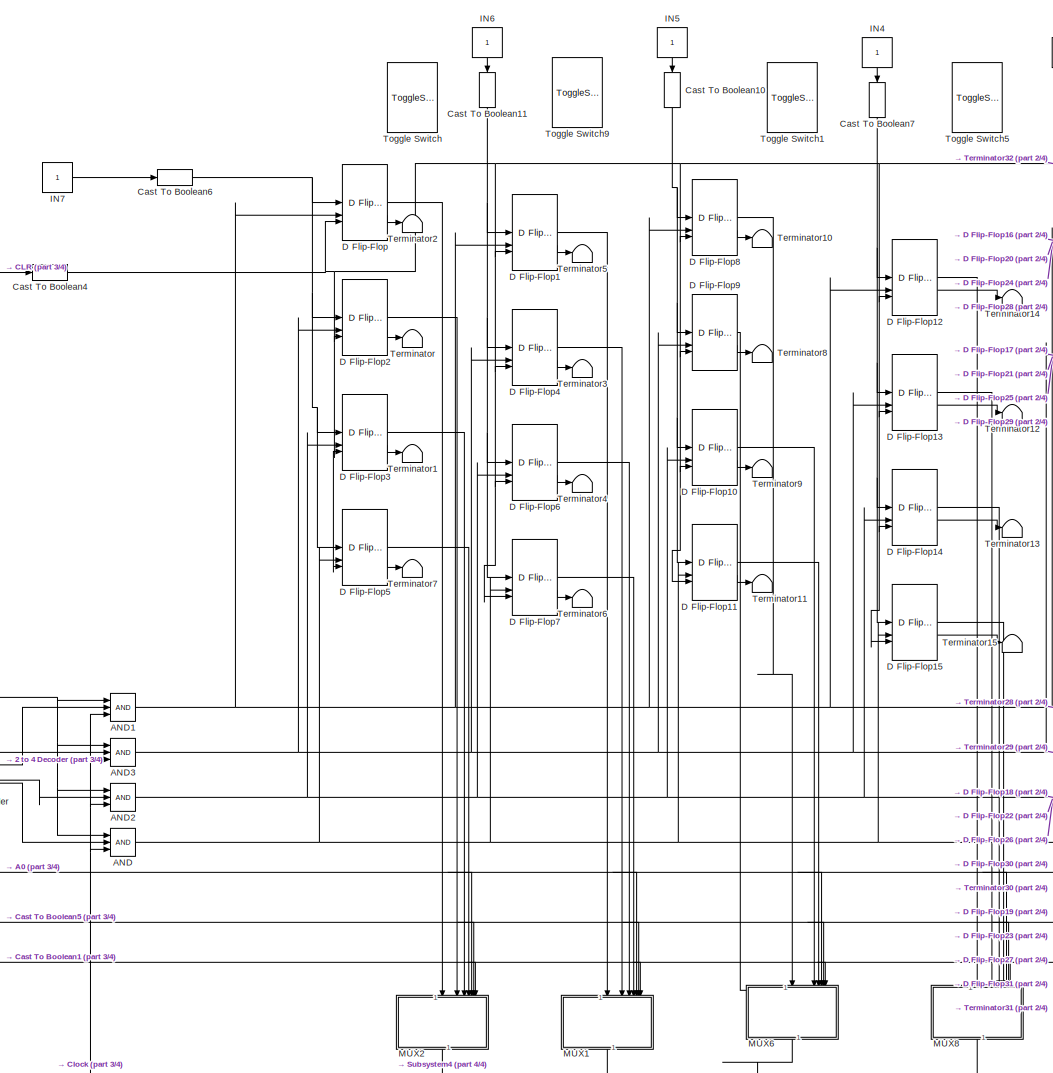
[diagram: root canvas - part 1/4, central region]
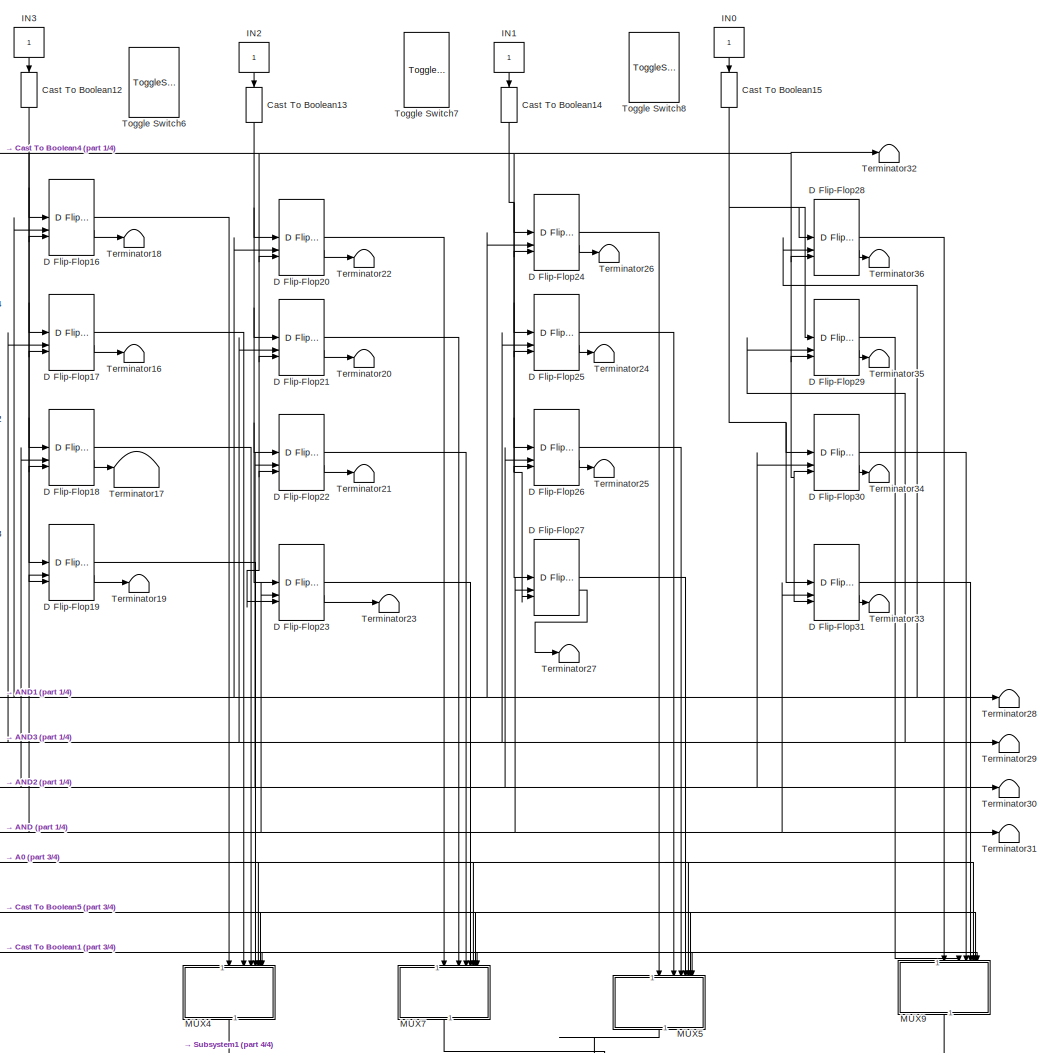
[diagram: root canvas - part 2/4, middle right region]
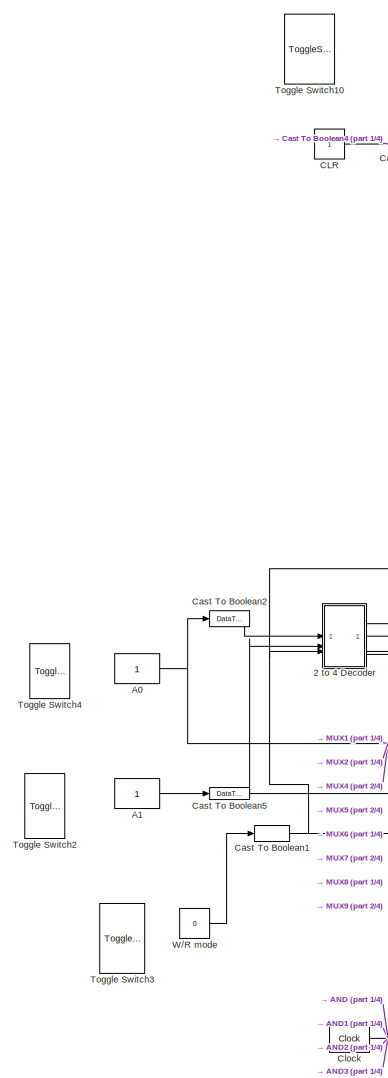
[diagram: root canvas - part 3/4, middle left region]
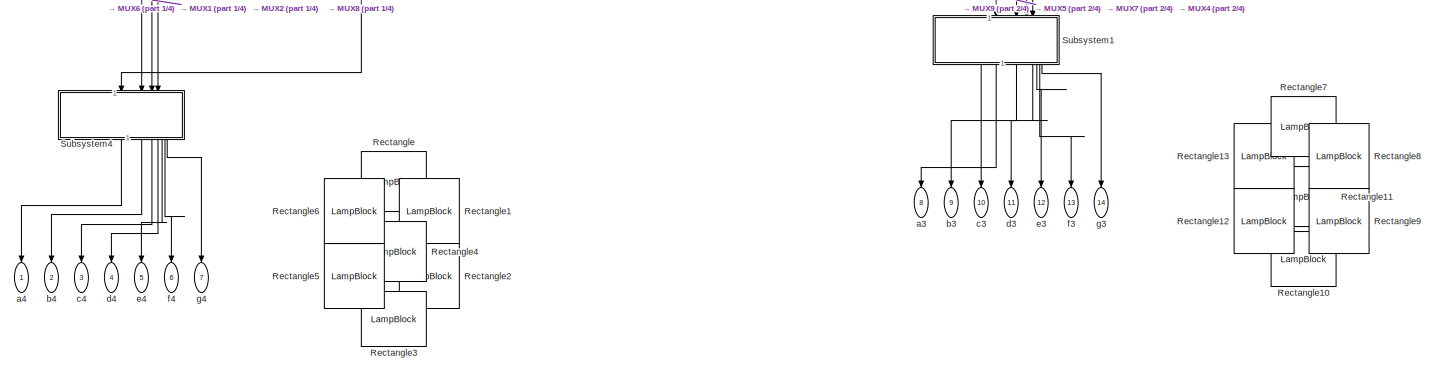
[diagram: root canvas - part 4/4, bottom right region]
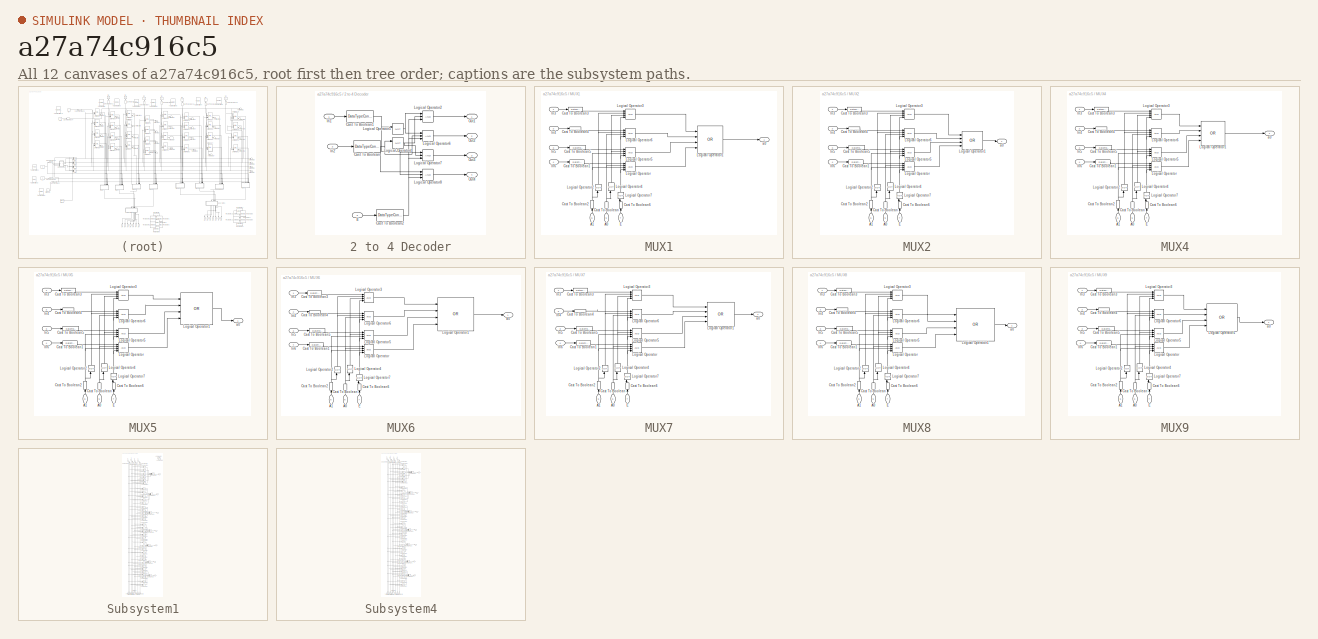
[diagram: thumbnail index - all 12 canvases of the model, root first then tree order]
MODEL slx_a27a74c916c5
KIND model
CONFIG AbsTol = auto
CONFIG EnableMultiTasking = off
CONFIG FixedStep = auto
CONFIG MaxStep = auto
CONFIG MinStep = auto
CONFIG RelTol = 1e-3
CONFIG SampleTimeConstraint = Unconstrained
CONFIG SolverName = VariableStepAuto
CONFIG StartTime = 0.0
CONFIG StopTime = inf
BLOCK [SubSystem] 2 to 4 Decoder
  TreatAsAtomicUnit = on
BLOCK [DataTypeConversion] 2 to 4 Decoder/Cast To Boolean
  OutDataTypeStr = boolean
  RndMeth = Floor
  SaturateOnIntegerOverflow = off
BLOCK [DataTypeConversion] 2 to 4 Decoder/Cast To Boolean1
  OutDataTypeStr = boolean
  RndMeth = Floor
  SaturateOnIntegerOverflow = off
BLOCK [DataTypeConversion] 2 to 4 Decoder/Cast To Boolean2
  OutDataTypeStr = boolean
  RndMeth = Floor
  SaturateOnIntegerOverflow = off
BLOCK [Inport] 2 to 4 Decoder/E
  Port = 3
BLOCK [Inport] 2 to 4 Decoder/In1
BLOCK [Inport] 2 to 4 Decoder/In2
  Port = 2
BLOCK [Logic] 2 to 4 Decoder/Logical Operator2
  AllPortsSameDT = off
  Inputs = 3
  OutDataTypeStr = boolean
BLOCK [Logic] 2 to 4 Decoder/Logical Operator4
  AllPortsSameDT = off
  Operator = NOT
  OutDataTypeStr = boolean
BLOCK [Logic] 2 to 4 Decoder/Logical Operator5
  AllPortsSameDT = off
  Operator = NOT
  OutDataTypeStr = boolean
BLOCK [Logic] 2 to 4 Decoder/Logical Operator6
  AllPortsSameDT = off
  Inputs = 3
  OutDataTypeStr = boolean
BLOCK [Logic] 2 to 4 Decoder/Logical Operator7
  AllPortsSameDT = off
  Inputs = 3
  OutDataTypeStr = boolean
BLOCK [Logic] 2 to 4 Decoder/Logical Operator8
  AllPortsSameDT = off
  Inputs = 3
  OutDataTypeStr = boolean
BLOCK [Outport] 2 to 4 Decoder/Out1
BLOCK [Outport] 2 to 4 Decoder/Out2
  Port = 2
BLOCK [Outport] 2 to 4 Decoder/Out3
  Port = 3
BLOCK [Outport] 2 to 4 Decoder/Out4
  Port = 4
BLOCK [Constant] A0
BLOCK [Constant] A1
BLOCK [Logic] AND
  AllPortsSameDT = off
  IconShape = distinctive
  Inputs = 3
  OutDataTypeStr = boolean
BLOCK [Logic] AND1
  AllPortsSameDT = off
  IconShape = distinctive
  Inputs = 3
  OutDataTypeStr = boolean
BLOCK [Logic] AND2
  AllPortsSameDT = off
  IconShape = distinctive
  Inputs = 3
  OutDataTypeStr = boolean
BLOCK [Logic] AND3
  AllPortsSameDT = off
  IconShape = distinctive
  Inputs = 3
  OutDataTypeStr = boolean
BLOCK [Constant] CLR
BLOCK [DataTypeConversion] Cast To Boolean1
  OutDataTypeStr = boolean
  RndMeth = Floor
  SaturateOnIntegerOverflow = off
BLOCK [DataTypeConversion] Cast To Boolean10
  NameLocation = left
  OutDataTypeStr = boolean
  RndMeth = Floor
  SaturateOnIntegerOverflow = off
BLOCK [DataTypeConversion] Cast To Boolean11
  NameLocation = left
  OutDataTypeStr = boolean
  RndMeth = Floor
  SaturateOnIntegerOverflow = off
BLOCK [DataTypeConversion] Cast To Boolean12
  NameLocation = left
  OutDataTypeStr = boolean
  RndMeth = Floor
  SaturateOnIntegerOverflow = off
BLOCK [DataTypeConversion] Cast To Boolean13
  NameLocation = left
  OutDataTypeStr = boolean
  RndMeth = Floor
  SaturateOnIntegerOverflow = off
BLOCK [DataTypeConversion] Cast To Boolean14
  NameLocation = left
  OutDataTypeStr = boolean
  RndMeth = Floor
  SaturateOnIntegerOverflow = off
BLOCK [DataTypeConversion] Cast To Boolean15
  NameLocation = left
  OutDataTypeStr = boolean
  RndMeth = Floor
  SaturateOnIntegerOverflow = off
BLOCK [DataTypeConversion] Cast To Boolean2
  OutDataTypeStr = boolean
  RndMeth = Floor
  SaturateOnIntegerOverflow = off
BLOCK [DataTypeConversion] Cast To Boolean4
  OutDataTypeStr = boolean
  RndMeth = Floor
  SaturateOnIntegerOverflow = off
BLOCK [DataTypeConversion] Cast To Boolean5
  OutDataTypeStr = boolean
  RndMeth = Floor
  SaturateOnIntegerOverflow = off
BLOCK [DataTypeConversion] Cast To Boolean6
  OutDataTypeStr = boolean
  RndMeth = Floor
  SaturateOnIntegerOverflow = off
BLOCK [DataTypeConversion] Cast To Boolean7
  NameLocation = left
  OutDataTypeStr = boolean
  RndMeth = Floor
  SaturateOnIntegerOverflow = off
BLOCK [Reference] Clock  REF=simulink_extras/Flip Flops/Clock
  SourceBlock = simulink_extras/Flip Flops/Clock
  SourceType = Digital clock
BLOCK [Reference] D Flip-Flop  REF=simulink_extras/Flip Flops/D Flip-Flop
  SourceBlock = simulink_extras/Flip Flops/D Flip-Flop
  SourceType = DFlipFlop
BLOCK [Reference] D Flip-Flop1  REF=simulink_extras/Flip Flops/D Flip-Flop
  SourceBlock = simulink_extras/Flip Flops/D Flip-Flop
  SourceType = DFlipFlop
BLOCK [Reference] D Flip-Flop10  REF=simulink_extras/Flip Flops/D Flip-Flop
  SourceBlock = simulink_extras/Flip Flops/D Flip-Flop
  SourceType = DFlipFlop
BLOCK [Reference] D Flip-Flop11  REF=simulink_extras/Flip Flops/D Flip-Flop
  SourceBlock = simulink_extras/Flip Flops/D Flip-Flop
  SourceType = DFlipFlop
BLOCK [Reference] D Flip-Flop12  REF=simulink_extras/Flip Flops/D Flip-Flop
  SourceBlock = simulink_extras/Flip Flops/D Flip-Flop
  SourceType = DFlipFlop
BLOCK [Reference] D Flip-Flop13  REF=simulink_extras/Flip Flops/D Flip-Flop
  SourceBlock = simulink_extras/Flip Flops/D Flip-Flop
  SourceType = DFlipFlop
BLOCK [Reference] D Flip-Flop14  REF=simulink_extras/Flip Flops/D Flip-Flop
  SourceBlock = simulink_extras/Flip Flops/D Flip-Flop
  SourceType = DFlipFlop
BLOCK [Reference] D Flip-Flop15  REF=simulink_extras/Flip Flops/D Flip-Flop
  SourceBlock = simulink_extras/Flip Flops/D Flip-Flop
  SourceType = DFlipFlop
BLOCK [Reference] D Flip-Flop16  REF=simulink_extras/Flip Flops/D Flip-Flop
  SourceBlock = simulink_extras/Flip Flops/D Flip-Flop
  SourceType = DFlipFlop
BLOCK [Reference] D Flip-Flop17  REF=simulink_extras/Flip Flops/D Flip-Flop
  SourceBlock = simulink_extras/Flip Flops/D Flip-Flop
  SourceType = DFlipFlop
BLOCK [Reference] D Flip-Flop18  REF=simulink_extras/Flip Flops/D Flip-Flop
  SourceBlock = simulink_extras/Flip Flops/D Flip-Flop
  SourceType = DFlipFlop
BLOCK [Reference] D Flip-Flop19  REF=simulink_extras/Flip Flops/D Flip-Flop
  SourceBlock = simulink_extras/Flip Flops/D Flip-Flop
  SourceType = DFlipFlop
BLOCK [Reference] D Flip-Flop2  REF=simulink_extras/Flip Flops/D Flip-Flop
  SourceBlock = simulink_extras/Flip Flops/D Flip-Flop
  SourceType = DFlipFlop
BLOCK [Reference] D Flip-Flop20  REF=simulink_extras/Flip Flops/D Flip-Flop
  SourceBlock = simulink_extras/Flip Flops/D Flip-Flop
  SourceType = DFlipFlop
BLOCK [Reference] D Flip-Flop21  REF=simulink_extras/Flip Flops/D Flip-Flop
  SourceBlock = simulink_extras/Flip Flops/D Flip-Flop
  SourceType = DFlipFlop
BLOCK [Reference] D Flip-Flop22  REF=simulink_extras/Flip Flops/D Flip-Flop
  SourceBlock = simulink_extras/Flip Flops/D Flip-Flop
  SourceType = DFlipFlop
BLOCK [Reference] D Flip-Flop23  REF=simulink_extras/Flip Flops/D Flip-Flop
  SourceBlock = simulink_extras/Flip Flops/D Flip-Flop
  SourceType = DFlipFlop
BLOCK [Reference] D Flip-Flop24  REF=simulink_extras/Flip Flops/D Flip-Flop
  SourceBlock = simulink_extras/Flip Flops/D Flip-Flop
  SourceType = DFlipFlop
BLOCK [Reference] D Flip-Flop25  REF=simulink_extras/Flip Flops/D Flip-Flop
  SourceBlock = simulink_extras/Flip Flops/D Flip-Flop
  SourceType = DFlipFlop
BLOCK [Reference] D Flip-Flop26  REF=simulink_extras/Flip Flops/D Flip-Flop
  SourceBlock = simulink_extras/Flip Flops/D Flip-Flop
  SourceType = DFlipFlop
BLOCK [Reference] D Flip-Flop27  REF=simulink_extras/Flip Flops/D Flip-Flop
  SourceBlock = simulink_extras/Flip Flops/D Flip-Flop
  SourceType = DFlipFlop
BLOCK [Reference] D Flip-Flop28  REF=simulink_extras/Flip Flops/D Flip-Flop
  SourceBlock = simulink_extras/Flip Flops/D Flip-Flop
  SourceType = DFlipFlop
BLOCK [Reference] D Flip-Flop29  REF=simulink_extras/Flip Flops/D Flip-Flop
  SourceBlock = simulink_extras/Flip Flops/D Flip-Flop
  SourceType = DFlipFlop
BLOCK [Reference] D Flip-Flop3  REF=simulink_extras/Flip Flops/D Flip-Flop
  SourceBlock = simulink_extras/Flip Flops/D Flip-Flop
  SourceType = DFlipFlop
BLOCK [Reference] D Flip-Flop30  REF=simulink_extras/Flip Flops/D Flip-Flop
  SourceBlock = simulink_extras/Flip Flops/D Flip-Flop
  SourceType = DFlipFlop
BLOCK [Reference] D Flip-Flop31  REF=simulink_extras/Flip Flops/D Flip-Flop
  SourceBlock = simulink_extras/Flip Flops/D Flip-Flop
  SourceType = DFlipFlop
BLOCK [Reference] D Flip-Flop4  REF=simulink_extras/Flip Flops/D Flip-Flop
  SourceBlock = simulink_extras/Flip Flops/D Flip-Flop
  SourceType = DFlipFlop
BLOCK [Reference] D Flip-Flop5  REF=simulink_extras/Flip Flops/D Flip-Flop
  SourceBlock = simulink_extras/Flip Flops/D Flip-Flop
  SourceType = DFlipFlop
BLOCK [Reference] D Flip-Flop6  REF=simulink_extras/Flip Flops/D Flip-Flop
  SourceBlock = simulink_extras/Flip Flops/D Flip-Flop
  SourceType = DFlipFlop
BLOCK [Reference] D Flip-Flop7  REF=simulink_extras/Flip Flops/D Flip-Flop
  SourceBlock = simulink_extras/Flip Flops/D Flip-Flop
  SourceType = DFlipFlop
BLOCK [Reference] D Flip-Flop8  REF=simulink_extras/Flip Flops/D Flip-Flop
  SourceBlock = simulink_extras/Flip Flops/D Flip-Flop
  SourceType = DFlipFlop
BLOCK [Reference] D Flip-Flop9  REF=simulink_extras/Flip Flops/D Flip-Flop
  SourceBlock = simulink_extras/Flip Flops/D Flip-Flop
  SourceType = DFlipFlop
BLOCK [Constant] IN0
  NameLocation = left
BLOCK [Constant] IN1
  NameLocation = left
BLOCK [Constant] IN2
  NameLocation = left
BLOCK [Constant] IN3
  NameLocation = left
BLOCK [Constant] IN4
  NameLocation = left
BLOCK [Constant] IN5
  NameLocation = left
BLOCK [Constant] IN6
  NameLocation = left
BLOCK [Constant] IN7
BLOCK [SubSystem] MUX1
  NameLocation = left
  TreatAsAtomicUnit = on
BLOCK [Inport] MUX1/A0
  NameLocation = right
  Port = 5
BLOCK [Inport] MUX1/A1
  NameLocation = right
  Port = 6
BLOCK [DataTypeConversion] MUX1/Cast To Boolean
  NameLocation = right
  OutDataTypeStr = boolean
  RndMeth = Floor
  SaturateOnIntegerOverflow = off
BLOCK [DataTypeConversion] MUX1/Cast To Boolean1
  OutDataTypeStr = boolean
  RndMeth = Floor
  SaturateOnIntegerOverflow = off
BLOCK [DataTypeConversion] MUX1/Cast To Boolean2
  NameLocation = right
  OutDataTypeStr = boolean
  RndMeth = Floor
  SaturateOnIntegerOverflow = off
BLOCK [DataTypeConversion] MUX1/Cast To Boolean3
  OutDataTypeStr = boolean
  RndMeth = Floor
  SaturateOnIntegerOverflow = off
BLOCK [DataTypeConversion] MUX1/Cast To Boolean4
  OutDataTypeStr = boolean
  RndMeth = Floor
  SaturateOnIntegerOverflow = off
BLOCK [DataTypeConversion] MUX1/Cast To Boolean5
  OutDataTypeStr = boolean
  RndMeth = Floor
  SaturateOnIntegerOverflow = off
BLOCK [DataTypeConversion] MUX1/Cast To Boolean6
  NameLocation = right
  OutDataTypeStr = boolean
  RndMeth = Floor
  SaturateOnIntegerOverflow = off
BLOCK [Inport] MUX1/E
  NameLocation = right
  Port = 7
BLOCK [Inport] MUX1/In3
BLOCK [Inport] MUX1/In4
  Port = 2
BLOCK [Inport] MUX1/In5
  Port = 3
BLOCK [Inport] MUX1/In6
  Port = 4
BLOCK [Logic] MUX1/Logical Operator
  AllPortsSameDT = off
  Inputs = 4
  OutDataTypeStr = boolean
BLOCK [Logic] MUX1/Logical Operator1
  AllPortsSameDT = off
  Inputs = 4
  Operator = OR
  OutDataTypeStr = boolean
BLOCK [Logic] MUX1/Logical Operator2
  AllPortsSameDT = off
  NameLocation = right
  Operator = NOT
  OutDataTypeStr = boolean
BLOCK [Logic] MUX1/Logical Operator3
  AllPortsSameDT = off
  Inputs = 4
  OutDataTypeStr = boolean
BLOCK [Logic] MUX1/Logical Operator4
  AllPortsSameDT = off
  NameLocation = right
  Operator = NOT
  OutDataTypeStr = boolean
BLOCK [Logic] MUX1/Logical Operator5
  AllPortsSameDT = off
  Inputs = 4
  OutDataTypeStr = boolean
BLOCK [Logic] MUX1/Logical Operator6
  AllPortsSameDT = off
  Inputs = 4
  OutDataTypeStr = boolean
BLOCK [Logic] MUX1/Logical Operator7
  AllPortsSameDT = off
  NameLocation = right
  Operator = NOT
  OutDataTypeStr = boolean
BLOCK [Outport] MUX1/a0
BLOCK [SubSystem] MUX2
  NameLocation = left
  TreatAsAtomicUnit = on
BLOCK [Inport] MUX2/A0
  NameLocation = right
  Port = 5
BLOCK [Inport] MUX2/A1
  NameLocation = right
  Port = 6
BLOCK [DataTypeConversion] MUX2/Cast To Boolean
  NameLocation = right
  OutDataTypeStr = boolean
  RndMeth = Floor
  SaturateOnIntegerOverflow = off
BLOCK [DataTypeConversion] MUX2/Cast To Boolean1
  OutDataTypeStr = boolean
  RndMeth = Floor
  SaturateOnIntegerOverflow = off
BLOCK [DataTypeConversion] MUX2/Cast To Boolean2
  NameLocation = right
  OutDataTypeStr = boolean
  RndMeth = Floor
  SaturateOnIntegerOverflow = off
BLOCK [DataTypeConversion] MUX2/Cast To Boolean3
  OutDataTypeStr = boolean
  RndMeth = Floor
  SaturateOnIntegerOverflow = off
BLOCK [DataTypeConversion] MUX2/Cast To Boolean4
  OutDataTypeStr = boolean
  RndMeth = Floor
  SaturateOnIntegerOverflow = off
BLOCK [DataTypeConversion] MUX2/Cast To Boolean5
  OutDataTypeStr = boolean
  RndMeth = Floor
  SaturateOnIntegerOverflow = off
BLOCK [DataTypeConversion] MUX2/Cast To Boolean6
  NameLocation = right
  OutDataTypeStr = boolean
  RndMeth = Floor
  SaturateOnIntegerOverflow = off
BLOCK [Inport] MUX2/E
  NameLocation = right
  Port = 7
BLOCK [Inport] MUX2/In3
BLOCK [Inport] MUX2/In4
  Port = 2
BLOCK [Inport] MUX2/In5
  Port = 3
BLOCK [Inport] MUX2/In6
  Port = 4
BLOCK [Logic] MUX2/Logical Operator
  AllPortsSameDT = off
  Inputs = 4
  OutDataTypeStr = boolean
BLOCK [Logic] MUX2/Logical Operator1
  AllPortsSameDT = off
  Inputs = 4
  Operator = OR
  OutDataTypeStr = boolean
BLOCK [Logic] MUX2/Logical Operator2
  AllPortsSameDT = off
  NameLocation = right
  Operator = NOT
  OutDataTypeStr = boolean
BLOCK [Logic] MUX2/Logical Operator3
  AllPortsSameDT = off
  Inputs = 4
  OutDataTypeStr = boolean
BLOCK [Logic] MUX2/Logical Operator4
  AllPortsSameDT = off
  NameLocation = right
  Operator = NOT
  OutDataTypeStr = boolean
BLOCK [Logic] MUX2/Logical Operator5
  AllPortsSameDT = off
  Inputs = 4
  OutDataTypeStr = boolean
BLOCK [Logic] MUX2/Logical Operator6
  AllPortsSameDT = off
  Inputs = 4
  OutDataTypeStr = boolean
BLOCK [Logic] MUX2/Logical Operator7
  AllPortsSameDT = off
  NameLocation = right
  Operator = NOT
  OutDataTypeStr = boolean
BLOCK [Outport] MUX2/a0
BLOCK [SubSystem] MUX4
  NameLocation = left
  TreatAsAtomicUnit = on
BLOCK [Inport] MUX4/A0
  NameLocation = right
  Port = 5
BLOCK [Inport] MUX4/A1
  NameLocation = right
  Port = 6
BLOCK [DataTypeConversion] MUX4/Cast To Boolean
  NameLocation = right
  OutDataTypeStr = boolean
  RndMeth = Floor
  SaturateOnIntegerOverflow = off
BLOCK [DataTypeConversion] MUX4/Cast To Boolean1
  OutDataTypeStr = boolean
  RndMeth = Floor
  SaturateOnIntegerOverflow = off
BLOCK [DataTypeConversion] MUX4/Cast To Boolean2
  NameLocation = right
  OutDataTypeStr = boolean
  RndMeth = Floor
  SaturateOnIntegerOverflow = off
BLOCK [DataTypeConversion] MUX4/Cast To Boolean3
  OutDataTypeStr = boolean
  RndMeth = Floor
  SaturateOnIntegerOverflow = off
BLOCK [DataTypeConversion] MUX4/Cast To Boolean4
  OutDataTypeStr = boolean
  RndMeth = Floor
  SaturateOnIntegerOverflow = off
BLOCK [DataTypeConversion] MUX4/Cast To Boolean5
  OutDataTypeStr = boolean
  RndMeth = Floor
  SaturateOnIntegerOverflow = off
BLOCK [DataTypeConversion] MUX4/Cast To Boolean6
  NameLocation = right
  OutDataTypeStr = boolean
  RndMeth = Floor
  SaturateOnIntegerOverflow = off
BLOCK [Inport] MUX4/E
  NameLocation = right
  Port = 7
BLOCK [Inport] MUX4/In3
BLOCK [Inport] MUX4/In4
  Port = 2
BLOCK [Inport] MUX4/In5
  Port = 3
BLOCK [Inport] MUX4/In6
  Port = 4
BLOCK [Logic] MUX4/Logical Operator
  AllPortsSameDT = off
  Inputs = 4
  OutDataTypeStr = boolean
BLOCK [Logic] MUX4/Logical Operator1
  AllPortsSameDT = off
  Inputs = 4
  Operator = OR
  OutDataTypeStr = boolean
BLOCK [Logic] MUX4/Logical Operator2
  AllPortsSameDT = off
  NameLocation = right
  Operator = NOT
  OutDataTypeStr = boolean
BLOCK [Logic] MUX4/Logical Operator3
  AllPortsSameDT = off
  Inputs = 4
  OutDataTypeStr = boolean
BLOCK [Logic] MUX4/Logical Operator4
  AllPortsSameDT = off
  NameLocation = right
  Operator = NOT
  OutDataTypeStr = boolean
BLOCK [Logic] MUX4/Logical Operator5
  AllPortsSameDT = off
  Inputs = 4
  OutDataTypeStr = boolean
BLOCK [Logic] MUX4/Logical Operator6
  AllPortsSameDT = off
  Inputs = 4
  OutDataTypeStr = boolean
BLOCK [Logic] MUX4/Logical Operator7
  AllPortsSameDT = off
  NameLocation = right
  Operator = NOT
  OutDataTypeStr = boolean
BLOCK [Outport] MUX4/a0
BLOCK [SubSystem] MUX5
  NameLocation = left
  TreatAsAtomicUnit = on
BLOCK [Inport] MUX5/A0
  NameLocation = right
  Port = 5
BLOCK [Inport] MUX5/A1
  NameLocation = right
  Port = 6
BLOCK [DataTypeConversion] MUX5/Cast To Boolean
  NameLocation = right
  OutDataTypeStr = boolean
  RndMeth = Floor
  SaturateOnIntegerOverflow = off
BLOCK [DataTypeConversion] MUX5/Cast To Boolean1
  OutDataTypeStr = boolean
  RndMeth = Floor
  SaturateOnIntegerOverflow = off
BLOCK [DataTypeConversion] MUX5/Cast To Boolean2
  NameLocation = right
  OutDataTypeStr = boolean
  RndMeth = Floor
  SaturateOnIntegerOverflow = off
BLOCK [DataTypeConversion] MUX5/Cast To Boolean3
  OutDataTypeStr = boolean
  RndMeth = Floor
  SaturateOnIntegerOverflow = off
BLOCK [DataTypeConversion] MUX5/Cast To Boolean4
  OutDataTypeStr = boolean
  RndMeth = Floor
  SaturateOnIntegerOverflow = off
BLOCK [DataTypeConversion] MUX5/Cast To Boolean5
  OutDataTypeStr = boolean
  RndMeth = Floor
  SaturateOnIntegerOverflow = off
BLOCK [DataTypeConversion] MUX5/Cast To Boolean6
  NameLocation = right
  OutDataTypeStr = boolean
  RndMeth = Floor
  SaturateOnIntegerOverflow = off
BLOCK [Inport] MUX5/E
  NameLocation = right
  Port = 7
BLOCK [Inport] MUX5/In3
BLOCK [Inport] MUX5/In4
  Port = 2
BLOCK [Inport] MUX5/In5
  Port = 3
BLOCK [Inport] MUX5/In6
  Port = 4
BLOCK [Logic] MUX5/Logical Operator
  AllPortsSameDT = off
  Inputs = 4
  OutDataTypeStr = boolean
BLOCK [Logic] MUX5/Logical Operator1
  AllPortsSameDT = off
  Inputs = 4
  Operator = OR
  OutDataTypeStr = boolean
BLOCK [Logic] MUX5/Logical Operator2
  AllPortsSameDT = off
  NameLocation = right
  Operator = NOT
  OutDataTypeStr = boolean
BLOCK [Logic] MUX5/Logical Operator3
  AllPortsSameDT = off
  Inputs = 4
  OutDataTypeStr = boolean
BLOCK [Logic] MUX5/Logical Operator4
  AllPortsSameDT = off
  NameLocation = right
  Operator = NOT
  OutDataTypeStr = boolean
BLOCK [Logic] MUX5/Logical Operator5
  AllPortsSameDT = off
  Inputs = 4
  OutDataTypeStr = boolean
BLOCK [Logic] MUX5/Logical Operator6
  AllPortsSameDT = off
  Inputs = 4
  OutDataTypeStr = boolean
BLOCK [Logic] MUX5/Logical Operator7
  AllPortsSameDT = off
  NameLocation = right
  Operator = NOT
  OutDataTypeStr = boolean
BLOCK [Outport] MUX5/a0
BLOCK [SubSystem] MUX6
  NameLocation = left
  TreatAsAtomicUnit = on
BLOCK [Inport] MUX6/A0
  NameLocation = right
  Port = 5
BLOCK [Inport] MUX6/A1
  NameLocation = right
  Port = 6
BLOCK [DataTypeConversion] MUX6/Cast To Boolean
  NameLocation = right
  OutDataTypeStr = boolean
  RndMeth = Floor
  SaturateOnIntegerOverflow = off
BLOCK [DataTypeConversion] MUX6/Cast To Boolean1
  OutDataTypeStr = boolean
  RndMeth = Floor
  SaturateOnIntegerOverflow = off
BLOCK [DataTypeConversion] MUX6/Cast To Boolean2
  NameLocation = right
  OutDataTypeStr = boolean
  RndMeth = Floor
  SaturateOnIntegerOverflow = off
BLOCK [DataTypeConversion] MUX6/Cast To Boolean3
  OutDataTypeStr = boolean
  RndMeth = Floor
  SaturateOnIntegerOverflow = off
BLOCK [DataTypeConversion] MUX6/Cast To Boolean4
  OutDataTypeStr = boolean
  RndMeth = Floor
  SaturateOnIntegerOverflow = off
BLOCK [DataTypeConversion] MUX6/Cast To Boolean5
  OutDataTypeStr = boolean
  RndMeth = Floor
  SaturateOnIntegerOverflow = off
BLOCK [DataTypeConversion] MUX6/Cast To Boolean6
  NameLocation = right
  OutDataTypeStr = boolean
  RndMeth = Floor
  SaturateOnIntegerOverflow = off
BLOCK [Inport] MUX6/E
  NameLocation = right
  Port = 7
BLOCK [Inport] MUX6/In3
BLOCK [Inport] MUX6/In4
  Port = 2
BLOCK [Inport] MUX6/In5
  Port = 3
BLOCK [Inport] MUX6/In6
  Port = 4
BLOCK [Logic] MUX6/Logical Operator
  AllPortsSameDT = off
  Inputs = 4
  OutDataTypeStr = boolean
BLOCK [Logic] MUX6/Logical Operator1
  AllPortsSameDT = off
  Inputs = 4
  Operator = OR
  OutDataTypeStr = boolean
BLOCK [Logic] MUX6/Logical Operator2
  AllPortsSameDT = off
  NameLocation = right
  Operator = NOT
  OutDataTypeStr = boolean
BLOCK [Logic] MUX6/Logical Operator3
  AllPortsSameDT = off
  Inputs = 4
  OutDataTypeStr = boolean
BLOCK [Logic] MUX6/Logical Operator4
  AllPortsSameDT = off
  NameLocation = right
  Operator = NOT
  OutDataTypeStr = boolean
BLOCK [Logic] MUX6/Logical Operator5
  AllPortsSameDT = off
  Inputs = 4
  OutDataTypeStr = boolean
BLOCK [Logic] MUX6/Logical Operator6
  AllPortsSameDT = off
  Inputs = 4
  OutDataTypeStr = boolean
BLOCK [Logic] MUX6/Logical Operator7
  AllPortsSameDT = off
  NameLocation = right
  Operator = NOT
  OutDataTypeStr = boolean
BLOCK [Outport] MUX6/a0
BLOCK [SubSystem] MUX7
  NameLocation = left
  TreatAsAtomicUnit = on
BLOCK [Inport] MUX7/A0
  NameLocation = right
  Port = 5
BLOCK [Inport] MUX7/A1
  NameLocation = right
  Port = 6
BLOCK [DataTypeConversion] MUX7/Cast To Boolean
  NameLocation = right
  OutDataTypeStr = boolean
  RndMeth = Floor
  SaturateOnIntegerOverflow = off
BLOCK [DataTypeConversion] MUX7/Cast To Boolean1
  OutDataTypeStr = boolean
  RndMeth = Floor
  SaturateOnIntegerOverflow = off
BLOCK [DataTypeConversion] MUX7/Cast To Boolean2
  NameLocation = right
  OutDataTypeStr = boolean
  RndMeth = Floor
  SaturateOnIntegerOverflow = off
BLOCK [DataTypeConversion] MUX7/Cast To Boolean3
  OutDataTypeStr = boolean
  RndMeth = Floor
  SaturateOnIntegerOverflow = off
BLOCK [DataTypeConversion] MUX7/Cast To Boolean4
  OutDataTypeStr = boolean
  RndMeth = Floor
  SaturateOnIntegerOverflow = off
BLOCK [DataTypeConversion] MUX7/Cast To Boolean5
  OutDataTypeStr = boolean
  RndMeth = Floor
  SaturateOnIntegerOverflow = off
BLOCK [DataTypeConversion] MUX7/Cast To Boolean6
  NameLocation = right
  OutDataTypeStr = boolean
  RndMeth = Floor
  SaturateOnIntegerOverflow = off
BLOCK [Inport] MUX7/E
  NameLocation = right
  Port = 7
BLOCK [Inport] MUX7/In3
BLOCK [Inport] MUX7/In4
  Port = 2
BLOCK [Inport] MUX7/In5
  Port = 3
BLOCK [Inport] MUX7/In6
  Port = 4
BLOCK [Logic] MUX7/Logical Operator
  AllPortsSameDT = off
  Inputs = 4
  OutDataTypeStr = boolean
BLOCK [Logic] MUX7/Logical Operator1
  AllPortsSameDT = off
  Inputs = 4
  Operator = OR
  OutDataTypeStr = boolean
BLOCK [Logic] MUX7/Logical Operator2
  AllPortsSameDT = off
  NameLocation = right
  Operator = NOT
  OutDataTypeStr = boolean
BLOCK [Logic] MUX7/Logical Operator3
  AllPortsSameDT = off
  Inputs = 4
  OutDataTypeStr = boolean
BLOCK [Logic] MUX7/Logical Operator4
  AllPortsSameDT = off
  NameLocation = right
  Operator = NOT
  OutDataTypeStr = boolean
BLOCK [Logic] MUX7/Logical Operator5
  AllPortsSameDT = off
  Inputs = 4
  OutDataTypeStr = boolean
BLOCK [Logic] MUX7/Logical Operator6
  AllPortsSameDT = off
  Inputs = 4
  OutDataTypeStr = boolean
BLOCK [Logic] MUX7/Logical Operator7
  AllPortsSameDT = off
  NameLocation = right
  Operator = NOT
  OutDataTypeStr = boolean
BLOCK [Outport] MUX7/a0
BLOCK [SubSystem] MUX8
  NameLocation = left
  TreatAsAtomicUnit = on
BLOCK [Inport] MUX8/A0
  NameLocation = right
  Port = 5
BLOCK [Inport] MUX8/A1
  NameLocation = right
  Port = 6
BLOCK [DataTypeConversion] MUX8/Cast To Boolean
  NameLocation = right
  OutDataTypeStr = boolean
  RndMeth = Floor
  SaturateOnIntegerOverflow = off
BLOCK [DataTypeConversion] MUX8/Cast To Boolean1
  OutDataTypeStr = boolean
  RndMeth = Floor
  SaturateOnIntegerOverflow = off
BLOCK [DataTypeConversion] MUX8/Cast To Boolean2
  NameLocation = right
  OutDataTypeStr = boolean
  RndMeth = Floor
  SaturateOnIntegerOverflow = off
BLOCK [DataTypeConversion] MUX8/Cast To Boolean3
  OutDataTypeStr = boolean
  RndMeth = Floor
  SaturateOnIntegerOverflow = off
BLOCK [DataTypeConversion] MUX8/Cast To Boolean4
  OutDataTypeStr = boolean
  RndMeth = Floor
  SaturateOnIntegerOverflow = off
BLOCK [DataTypeConversion] MUX8/Cast To Boolean5
  OutDataTypeStr = boolean
  RndMeth = Floor
  SaturateOnIntegerOverflow = off
BLOCK [DataTypeConversion] MUX8/Cast To Boolean6
  NameLocation = right
  OutDataTypeStr = boolean
  RndMeth = Floor
  SaturateOnIntegerOverflow = off
BLOCK [Inport] MUX8/E
  NameLocation = right
  Port = 7
BLOCK [Inport] MUX8/In3
BLOCK [Inport] MUX8/In4
  Port = 2
BLOCK [Inport] MUX8/In5
  Port = 3
BLOCK [Inport] MUX8/In6
  Port = 4
BLOCK [Logic] MUX8/Logical Operator
  AllPortsSameDT = off
  Inputs = 4
  OutDataTypeStr = boolean
BLOCK [Logic] MUX8/Logical Operator1
  AllPortsSameDT = off
  Inputs = 4
  Operator = OR
  OutDataTypeStr = boolean
BLOCK [Logic] MUX8/Logical Operator2
  AllPortsSameDT = off
  NameLocation = right
  Operator = NOT
  OutDataTypeStr = boolean
BLOCK [Logic] MUX8/Logical Operator3
  AllPortsSameDT = off
  Inputs = 4
  OutDataTypeStr = boolean
BLOCK [Logic] MUX8/Logical Operator4
  AllPortsSameDT = off
  NameLocation = right
  Operator = NOT
  OutDataTypeStr = boolean
BLOCK [Logic] MUX8/Logical Operator5
  AllPortsSameDT = off
  Inputs = 4
  OutDataTypeStr = boolean
BLOCK [Logic] MUX8/Logical Operator6
  AllPortsSameDT = off
  Inputs = 4
  OutDataTypeStr = boolean
BLOCK [Logic] MUX8/Logical Operator7
  AllPortsSameDT = off
  NameLocation = right
  Operator = NOT
  OutDataTypeStr = boolean
BLOCK [Outport] MUX8/a0
BLOCK [SubSystem] MUX9
  NameLocation = left
  TreatAsAtomicUnit = on
BLOCK [Inport] MUX9/A0
  NameLocation = right
  Port = 5
BLOCK [Inport] MUX9/A1
  NameLocation = right
  Port = 6
BLOCK [DataTypeConversion] MUX9/Cast To Boolean
  NameLocation = right
  OutDataTypeStr = boolean
  RndMeth = Floor
  SaturateOnIntegerOverflow = off
BLOCK [DataTypeConversion] MUX9/Cast To Boolean1
  OutDataTypeStr = boolean
  RndMeth = Floor
  SaturateOnIntegerOverflow = off
BLOCK [DataTypeConversion] MUX9/Cast To Boolean2
  NameLocation = right
  OutDataTypeStr = boolean
  RndMeth = Floor
  SaturateOnIntegerOverflow = off
BLOCK [DataTypeConversion] MUX9/Cast To Boolean3
  OutDataTypeStr = boolean
  RndMeth = Floor
  SaturateOnIntegerOverflow = off
BLOCK [DataTypeConversion] MUX9/Cast To Boolean4
  OutDataTypeStr = boolean
  RndMeth = Floor
  SaturateOnIntegerOverflow = off
BLOCK [DataTypeConversion] MUX9/Cast To Boolean5
  OutDataTypeStr = boolean
  RndMeth = Floor
  SaturateOnIntegerOverflow = off
BLOCK [DataTypeConversion] MUX9/Cast To Boolean6
  NameLocation = right
  OutDataTypeStr = boolean
  RndMeth = Floor
  SaturateOnIntegerOverflow = off
BLOCK [Inport] MUX9/E
  NameLocation = right
  Port = 7
BLOCK [Inport] MUX9/In3
BLOCK [Inport] MUX9/In4
  Port = 2
BLOCK [Inport] MUX9/In5
  Port = 3
BLOCK [Inport] MUX9/In6
  Port = 4
BLOCK [Logic] MUX9/Logical Operator
  AllPortsSameDT = off
  Inputs = 4
  OutDataTypeStr = boolean
BLOCK [Logic] MUX9/Logical Operator1
  AllPortsSameDT = off
  Inputs = 4
  Operator = OR
  OutDataTypeStr = boolean
BLOCK [Logic] MUX9/Logical Operator2
  AllPortsSameDT = off
  NameLocation = right
  Operator = NOT
  OutDataTypeStr = boolean
BLOCK [Logic] MUX9/Logical Operator3
  AllPortsSameDT = off
  Inputs = 4
  OutDataTypeStr = boolean
BLOCK [Logic] MUX9/Logical Operator4
  AllPortsSameDT = off
  NameLocation = right
  Operator = NOT
  OutDataTypeStr = boolean
BLOCK [Logic] MUX9/Logical Operator5
  AllPortsSameDT = off
  Inputs = 4
  OutDataTypeStr = boolean
BLOCK [Logic] MUX9/Logical Operator6
  AllPortsSameDT = off
  Inputs = 4
  OutDataTypeStr = boolean
BLOCK [Logic] MUX9/Logical Operator7
  AllPortsSameDT = off
  NameLocation = right
  Operator = NOT
  OutDataTypeStr = boolean
BLOCK [Outport] MUX9/a0
BLOCK [LampBlock] Rectangle
  Icon = Rectangle
  LabelPosition = Bottom
BLOCK [LampBlock] Rectangle1
  Icon = Rectangle
  LabelPosition = Bottom
  NameLocation = right
BLOCK [LampBlock] Rectangle10
  Icon = Rectangle
  LabelPosition = Bottom
BLOCK [LampBlock] Rectangle11
  Icon = Rectangle
  LabelPosition = Bottom
BLOCK [LampBlock] Rectangle12
  Icon = Rectangle
  LabelPosition = Bottom
  NameLocation = right
BLOCK [LampBlock] Rectangle13
  Icon = Rectangle
  LabelPosition = Bottom
  NameLocation = right
BLOCK [LampBlock] Rectangle2
  Icon = Rectangle
  LabelPosition = Bottom
  NameLocation = right
BLOCK [LampBlock] Rectangle3
  Icon = Rectangle
  LabelPosition = Bottom
BLOCK [LampBlock] Rectangle4
  Icon = Rectangle
  LabelPosition = Bottom
BLOCK [LampBlock] Rectangle5
  Icon = Rectangle
  LabelPosition = Bottom
  NameLocation = right
BLOCK [LampBlock] Rectangle6
  Icon = Rectangle
  LabelPosition = Bottom
  NameLocation = right
BLOCK [LampBlock] Rectangle7
  Icon = Rectangle
  LabelPosition = Bottom
BLOCK [LampBlock] Rectangle8
  Icon = Rectangle
  LabelPosition = Bottom
  NameLocation = right
BLOCK [LampBlock] Rectangle9
  Icon = Rectangle
  LabelPosition = Bottom
  NameLocation = right
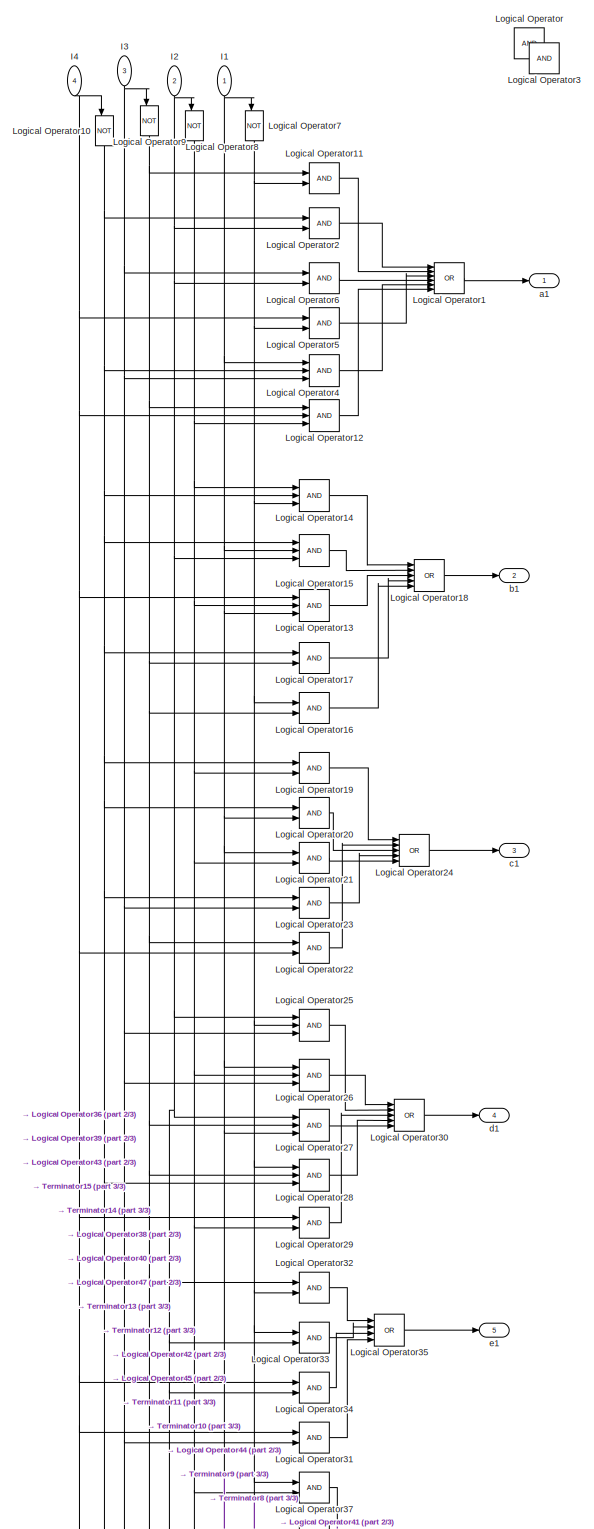
[diagram: Subsystem1 - part 1/3, most of the canvas]
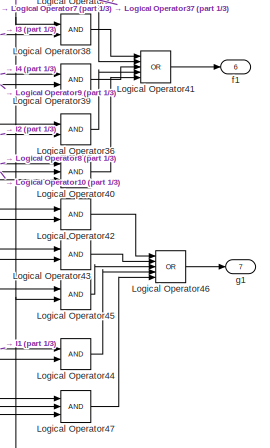
[diagram: Subsystem1 - part 2/3, bottom center region]
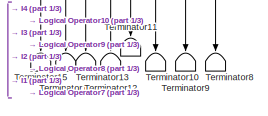
[diagram: Subsystem1 - part 3/3, bottom left region]
BLOCK [SubSystem] Subsystem1
  NameLocation = left
  TreatAsAtomicUnit = on
BLOCK [Inport] Subsystem1/I1
  NameLocation = left
BLOCK [Inport] Subsystem1/I2
  NameLocation = left
  Port = 2
BLOCK [Inport] Subsystem1/I3
  NameLocation = left
  Port = 3
BLOCK [Inport] Subsystem1/I4
  NameLocation = left
  Port = 4
BLOCK [Logic] Subsystem1/Logical Operator
  AllPortsSameDT = off
  OutDataTypeStr = boolean
BLOCK [Logic] Subsystem1/Logical Operator1
  AllPortsSameDT = off
  Inputs = 6
  Operator = OR
  OutDataTypeStr = boolean
BLOCK [Logic] Subsystem1/Logical Operator10
  AllPortsSameDT = off
  NameLocation = left
  Operator = NOT
  OutDataTypeStr = boolean
BLOCK [Logic] Subsystem1/Logical Operator11
  AllPortsSameDT = off
  OutDataTypeStr = boolean
BLOCK [Logic] Subsystem1/Logical Operator12
  AllPortsSameDT = off
  Inputs = 3
  OutDataTypeStr = boolean
BLOCK [Logic] Subsystem1/Logical Operator13
  AllPortsSameDT = off
  Inputs = 3
  OutDataTypeStr = boolean
BLOCK [Logic] Subsystem1/Logical Operator14
  AllPortsSameDT = off
  Inputs = 3
  OutDataTypeStr = boolean
BLOCK [Logic] Subsystem1/Logical Operator15
  AllPortsSameDT = off
  Inputs = 3
  OutDataTypeStr = boolean
BLOCK [Logic] Subsystem1/Logical Operator16
  AllPortsSameDT = off
  OutDataTypeStr = boolean
BLOCK [Logic] Subsystem1/Logical Operator17
  AllPortsSameDT = off
  OutDataTypeStr = boolean
BLOCK [Logic] Subsystem1/Logical Operator18
  AllPortsSameDT = off
  Inputs = 5
  Operator = OR
  OutDataTypeStr = boolean
BLOCK [Logic] Subsystem1/Logical Operator19
  AllPortsSameDT = off
  OutDataTypeStr = boolean
BLOCK [Logic] Subsystem1/Logical Operator2
  AllPortsSameDT = off
  OutDataTypeStr = boolean
BLOCK [Logic] Subsystem1/Logical Operator20
  AllPortsSameDT = off
  OutDataTypeStr = boolean
BLOCK [Logic] Subsystem1/Logical Operator21
  AllPortsSameDT = off
  OutDataTypeStr = boolean
BLOCK [Logic] Subsystem1/Logical Operator22
  AllPortsSameDT = off
  OutDataTypeStr = boolean
BLOCK [Logic] Subsystem1/Logical Operator23
  AllPortsSameDT = off
  OutDataTypeStr = boolean
BLOCK [Logic] Subsystem1/Logical Operator24
  AllPortsSameDT = off
  Inputs = 5
  Operator = OR
  OutDataTypeStr = boolean
BLOCK [Logic] Subsystem1/Logical Operator25
  AllPortsSameDT = off
  Inputs = 3
  OutDataTypeStr = boolean
BLOCK [Logic] Subsystem1/Logical Operator26
  AllPortsSameDT = off
  Inputs = 3
  OutDataTypeStr = boolean
BLOCK [Logic] Subsystem1/Logical Operator27
  AllPortsSameDT = off
  Inputs = 3
  OutDataTypeStr = boolean
BLOCK [Logic] Subsystem1/Logical Operator28
  AllPortsSameDT = off
  Inputs = 3
  OutDataTypeStr = boolean
BLOCK [Logic] Subsystem1/Logical Operator29
  AllPortsSameDT = off
  OutDataTypeStr = boolean
BLOCK [Logic] Subsystem1/Logical Operator3
  AllPortsSameDT = off
  OutDataTypeStr = boolean
BLOCK [Logic] Subsystem1/Logical Operator30
  AllPortsSameDT = off
  Inputs = 5
  Operator = OR
  OutDataTypeStr = boolean
BLOCK [Logic] Subsystem1/Logical Operator31
  AllPortsSameDT = off
  OutDataTypeStr = boolean
BLOCK [Logic] Subsystem1/Logical Operator32
  AllPortsSameDT = off
  OutDataTypeStr = boolean
BLOCK [Logic] Subsystem1/Logical Operator33
  AllPortsSameDT = off
  OutDataTypeStr = boolean
BLOCK [Logic] Subsystem1/Logical Operator34
  AllPortsSameDT = off
  OutDataTypeStr = boolean
BLOCK [Logic] Subsystem1/Logical Operator35
  AllPortsSameDT = off
  Inputs = 4
  Operator = OR
  OutDataTypeStr = boolean
BLOCK [Logic] Subsystem1/Logical Operator36
  AllPortsSameDT = off
  OutDataTypeStr = boolean
BLOCK [Logic] Subsystem1/Logical Operator37
  AllPortsSameDT = off
  OutDataTypeStr = boolean
BLOCK [Logic] Subsystem1/Logical Operator38
  AllPortsSameDT = off
  OutDataTypeStr = boolean
BLOCK [Logic] Subsystem1/Logical Operator39
  AllPortsSameDT = off
  OutDataTypeStr = boolean
BLOCK [Logic] Subsystem1/Logical Operator4
  AllPortsSameDT = off
  Inputs = 3
  OutDataTypeStr = boolean
BLOCK [Logic] Subsystem1/Logical Operator40
  AllPortsSameDT = off
  Inputs = 3
  OutDataTypeStr = boolean
BLOCK [Logic] Subsystem1/Logical Operator41
  AllPortsSameDT = off
  Inputs = 5
  Operator = OR
  OutDataTypeStr = boolean
BLOCK [Logic] Subsystem1/Logical Operator42
  AllPortsSameDT = off
  OutDataTypeStr = boolean
BLOCK [Logic] Subsystem1/Logical Operator43
  AllPortsSameDT = off
  OutDataTypeStr = boolean
BLOCK [Logic] Subsystem1/Logical Operator44
  AllPortsSameDT = off
  OutDataTypeStr = boolean
BLOCK [Logic] Subsystem1/Logical Operator45
  AllPortsSameDT = off
  OutDataTypeStr = boolean
BLOCK [Logic] Subsystem1/Logical Operator46
  AllPortsSameDT = off
  Inputs = 5
  Operator = OR
  OutDataTypeStr = boolean
BLOCK [Logic] Subsystem1/Logical Operator47
  AllPortsSameDT = off
  Inputs = 3
  OutDataTypeStr = boolean
BLOCK [Logic] Subsystem1/Logical Operator5
  AllPortsSameDT = off
  OutDataTypeStr = boolean
BLOCK [Logic] Subsystem1/Logical Operator6
  AllPortsSameDT = off
  OutDataTypeStr = boolean
BLOCK [Logic] Subsystem1/Logical Operator7
  AllPortsSameDT = off
  NameLocation = left
  Operator = NOT
  OutDataTypeStr = boolean
BLOCK [Logic] Subsystem1/Logical Operator8
  AllPortsSameDT = off
  NameLocation = left
  Operator = NOT
  OutDataTypeStr = boolean
BLOCK [Logic] Subsystem1/Logical Operator9
  AllPortsSameDT = off
  NameLocation = left
  Operator = NOT
  OutDataTypeStr = boolean
BLOCK [Terminator] Subsystem1/Terminator10
  NameLocation = left
BLOCK [Terminator] Subsystem1/Terminator11
  NameLocation = left
BLOCK [Terminator] Subsystem1/Terminator12
  NameLocation = left
BLOCK [Terminator] Subsystem1/Terminator13
  NameLocation = left
BLOCK [Terminator] Subsystem1/Terminator14
  NameLocation = left
BLOCK [Terminator] Subsystem1/Terminator15
  NameLocation = left
BLOCK [Terminator] Subsystem1/Terminator8
  NameLocation = left
BLOCK [Terminator] Subsystem1/Terminator9
  NameLocation = left
BLOCK [Outport] Subsystem1/a1
BLOCK [Outport] Subsystem1/b1
  Port = 2
BLOCK [Outport] Subsystem1/c1
  Port = 3
BLOCK [Outport] Subsystem1/d1
  Port = 4
BLOCK [Outport] Subsystem1/e1
  Port = 5
BLOCK [Outport] Subsystem1/f1
  Port = 6
BLOCK [Outport] Subsystem1/g1
  Port = 7
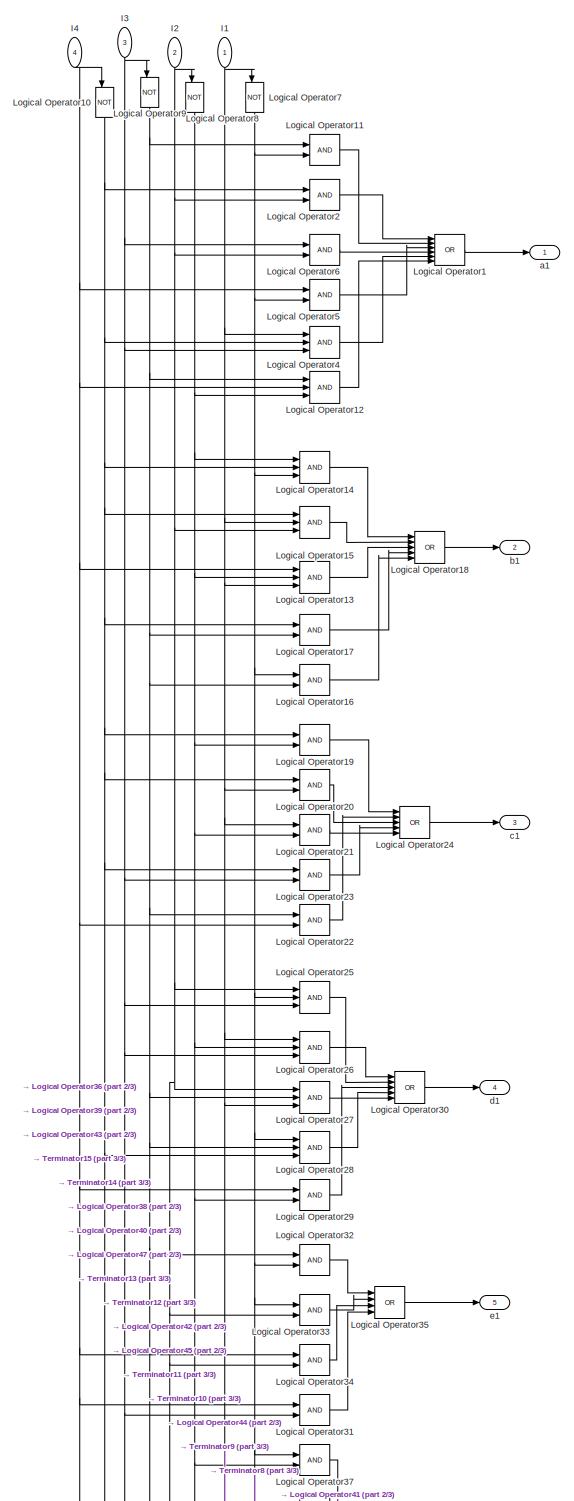
[diagram: Subsystem4 - part 1/3, full width, middle band]
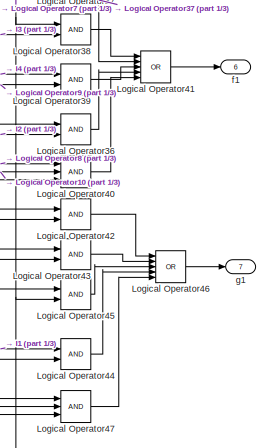
[diagram: Subsystem4 - part 2/3, bottom center region]
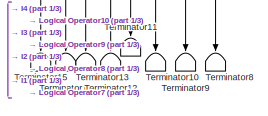
[diagram: Subsystem4 - part 3/3, bottom left region]
BLOCK [SubSystem] Subsystem4
  NameLocation = left
  TreatAsAtomicUnit = on
BLOCK [Inport] Subsystem4/I1
  NameLocation = left
BLOCK [Inport] Subsystem4/I2
  NameLocation = left
  Port = 2
BLOCK [Inport] Subsystem4/I3
  NameLocation = left
  Port = 3
BLOCK [Inport] Subsystem4/I4
  NameLocation = left
  Port = 4
BLOCK [Logic] Subsystem4/Logical Operator1
  AllPortsSameDT = off
  Inputs = 6
  Operator = OR
  OutDataTypeStr = boolean
BLOCK [Logic] Subsystem4/Logical Operator10
  AllPortsSameDT = off
  NameLocation = left
  Operator = NOT
  OutDataTypeStr = boolean
BLOCK [Logic] Subsystem4/Logical Operator11
  AllPortsSameDT = off
  OutDataTypeStr = boolean
BLOCK [Logic] Subsystem4/Logical Operator12
  AllPortsSameDT = off
  Inputs = 3
  OutDataTypeStr = boolean
BLOCK [Logic] Subsystem4/Logical Operator13
  AllPortsSameDT = off
  Inputs = 3
  OutDataTypeStr = boolean
BLOCK [Logic] Subsystem4/Logical Operator14
  AllPortsSameDT = off
  Inputs = 3
  OutDataTypeStr = boolean
BLOCK [Logic] Subsystem4/Logical Operator15
  AllPortsSameDT = off
  Inputs = 3
  OutDataTypeStr = boolean
BLOCK [Logic] Subsystem4/Logical Operator16
  AllPortsSameDT = off
  OutDataTypeStr = boolean
BLOCK [Logic] Subsystem4/Logical Operator17
  AllPortsSameDT = off
  OutDataTypeStr = boolean
BLOCK [Logic] Subsystem4/Logical Operator18
  AllPortsSameDT = off
  Inputs = 5
  Operator = OR
  OutDataTypeStr = boolean
BLOCK [Logic] Subsystem4/Logical Operator19
  AllPortsSameDT = off
  OutDataTypeStr = boolean
BLOCK [Logic] Subsystem4/Logical Operator2
  AllPortsSameDT = off
  OutDataTypeStr = boolean
BLOCK [Logic] Subsystem4/Logical Operator20
  AllPortsSameDT = off
  OutDataTypeStr = boolean
BLOCK [Logic] Subsystem4/Logical Operator21
  AllPortsSameDT = off
  OutDataTypeStr = boolean
BLOCK [Logic] Subsystem4/Logical Operator22
  AllPortsSameDT = off
  OutDataTypeStr = boolean
BLOCK [Logic] Subsystem4/Logical Operator23
  AllPortsSameDT = off
  OutDataTypeStr = boolean
BLOCK [Logic] Subsystem4/Logical Operator24
  AllPortsSameDT = off
  Inputs = 5
  Operator = OR
  OutDataTypeStr = boolean
BLOCK [Logic] Subsystem4/Logical Operator25
  AllPortsSameDT = off
  Inputs = 3
  OutDataTypeStr = boolean
BLOCK [Logic] Subsystem4/Logical Operator26
  AllPortsSameDT = off
  Inputs = 3
  OutDataTypeStr = boolean
BLOCK [Logic] Subsystem4/Logical Operator27
  AllPortsSameDT = off
  Inputs = 3
  OutDataTypeStr = boolean
BLOCK [Logic] Subsystem4/Logical Operator28
  AllPortsSameDT = off
  Inputs = 3
  OutDataTypeStr = boolean
BLOCK [Logic] Subsystem4/Logical Operator29
  AllPortsSameDT = off
  OutDataTypeStr = boolean
BLOCK [Logic] Subsystem4/Logical Operator30
  AllPortsSameDT = off
  Inputs = 5
  Operator = OR
  OutDataTypeStr = boolean
BLOCK [Logic] Subsystem4/Logical Operator31
  AllPortsSameDT = off
  OutDataTypeStr = boolean
BLOCK [Logic] Subsystem4/Logical Operator32
  AllPortsSameDT = off
  OutDataTypeStr = boolean
BLOCK [Logic] Subsystem4/Logical Operator33
  AllPortsSameDT = off
  OutDataTypeStr = boolean
BLOCK [Logic] Subsystem4/Logical Operator34
  AllPortsSameDT = off
  OutDataTypeStr = boolean
BLOCK [Logic] Subsystem4/Logical Operator35
  AllPortsSameDT = off
  Inputs = 4
  Operator = OR
  OutDataTypeStr = boolean
BLOCK [Logic] Subsystem4/Logical Operator36
  AllPortsSameDT = off
  OutDataTypeStr = boolean
BLOCK [Logic] Subsystem4/Logical Operator37
  AllPortsSameDT = off
  OutDataTypeStr = boolean
BLOCK [Logic] Subsystem4/Logical Operator38
  AllPortsSameDT = off
  OutDataTypeStr = boolean
BLOCK [Logic] Subsystem4/Logical Operator39
  AllPortsSameDT = off
  OutDataTypeStr = boolean
BLOCK [Logic] Subsystem4/Logical Operator4
  AllPortsSameDT = off
  Inputs = 3
  OutDataTypeStr = boolean
BLOCK [Logic] Subsystem4/Logical Operator40
  AllPortsSameDT = off
  Inputs = 3
  OutDataTypeStr = boolean
BLOCK [Logic] Subsystem4/Logical Operator41
  AllPortsSameDT = off
  Inputs = 5
  Operator = OR
  OutDataTypeStr = boolean
BLOCK [Logic] Subsystem4/Logical Operator42
  AllPortsSameDT = off
  OutDataTypeStr = boolean
BLOCK [Logic] Subsystem4/Logical Operator43
  AllPortsSameDT = off
  OutDataTypeStr = boolean
BLOCK [Logic] Subsystem4/Logical Operator44
  AllPortsSameDT = off
  OutDataTypeStr = boolean
BLOCK [Logic] Subsystem4/Logical Operator45
  AllPortsSameDT = off
  OutDataTypeStr = boolean
BLOCK [Logic] Subsystem4/Logical Operator46
  AllPortsSameDT = off
  Inputs = 5
  Operator = OR
  OutDataTypeStr = boolean
BLOCK [Logic] Subsystem4/Logical Operator47
  AllPortsSameDT = off
  Inputs = 3
  OutDataTypeStr = boolean
BLOCK [Logic] Subsystem4/Logical Operator5
  AllPortsSameDT = off
  OutDataTypeStr = boolean
BLOCK [Logic] Subsystem4/Logical Operator6
  AllPortsSameDT = off
  OutDataTypeStr = boolean
BLOCK [Logic] Subsystem4/Logical Operator7
  AllPortsSameDT = off
  NameLocation = left
  Operator = NOT
  OutDataTypeStr = boolean
BLOCK [Logic] Subsystem4/Logical Operator8
  AllPortsSameDT = off
  NameLocation = left
  Operator = NOT
  OutDataTypeStr = boolean
BLOCK [Logic] Subsystem4/Logical Operator9
  AllPortsSameDT = off
  NameLocation = left
  Operator = NOT
  OutDataTypeStr = boolean
BLOCK [Terminator] Subsystem4/Terminator10
  NameLocation = left
BLOCK [Terminator] Subsystem4/Terminator11
  NameLocation = left
BLOCK [Terminator] Subsystem4/Terminator12
  NameLocation = left
BLOCK [Terminator] Subsystem4/Terminator13
  NameLocation = left
BLOCK [Terminator] Subsystem4/Terminator14
  NameLocation = left
BLOCK [Terminator] Subsystem4/Terminator15
  NameLocation = left
BLOCK [Terminator] Subsystem4/Terminator8
  NameLocation = left
BLOCK [Terminator] Subsystem4/Terminator9
  NameLocation = left
BLOCK [Outport] Subsystem4/a1
BLOCK [Outport] Subsystem4/b1
  Port = 2
BLOCK [Outport] Subsystem4/c1
  Port = 3
BLOCK [Outport] Subsystem4/d1
  Port = 4
BLOCK [Outport] Subsystem4/e1
  Port = 5
BLOCK [Outport] Subsystem4/f1
  Port = 6
BLOCK [Outport] Subsystem4/g1
  Port = 7
BLOCK [Terminator] Terminator
BLOCK [Terminator] Terminator1
BLOCK [Terminator] Terminator10
BLOCK [Terminator] Terminator11
BLOCK [Terminator] Terminator12
BLOCK [Terminator] Terminator13
BLOCK [Terminator] Terminator14
BLOCK [Terminator] Terminator15
BLOCK [Terminator] Terminator16
BLOCK [Terminator] Terminator17
BLOCK [Terminator] Terminator18
BLOCK [Terminator] Terminator19
BLOCK [Terminator] Terminator2
BLOCK [Terminator] Terminator20
BLOCK [Terminator] Terminator21
BLOCK [Terminator] Terminator22
BLOCK [Terminator] Terminator23
BLOCK [Terminator] Terminator24
BLOCK [Terminator] Terminator25
BLOCK [Terminator] Terminator26
BLOCK [Terminator] Terminator27
BLOCK [Terminator] Terminator28
BLOCK [Terminator] Terminator29
BLOCK [Terminator] Terminator3
BLOCK [Terminator] Terminator30
BLOCK [Terminator] Terminator31
BLOCK [Terminator] Terminator32
BLOCK [Terminator] Terminator33
BLOCK [Terminator] Terminator34
BLOCK [Terminator] Terminator35
BLOCK [Terminator] Terminator36
BLOCK [Terminator] Terminator4
BLOCK [Terminator] Terminator5
BLOCK [Terminator] Terminator6
BLOCK [Terminator] Terminator7
BLOCK [Terminator] Terminator8
BLOCK [Terminator] Terminator9
BLOCK [ToggleSwitchBlock] Toggle Switch
BLOCK [ToggleSwitchBlock] Toggle Switch1
BLOCK [ToggleSwitchBlock] Toggle Switch10
BLOCK [ToggleSwitchBlock] Toggle Switch2
  LabelPosition = Bottom
BLOCK [ToggleSwitchBlock] Toggle Switch3
  LabelPosition = Bottom
BLOCK [ToggleSwitchBlock] Toggle Switch4
  LabelPosition = Bottom
BLOCK [ToggleSwitchBlock] Toggle Switch5
BLOCK [ToggleSwitchBlock] Toggle Switch6
BLOCK [ToggleSwitchBlock] Toggle Switch7
BLOCK [ToggleSwitchBlock] Toggle Switch8
BLOCK [ToggleSwitchBlock] Toggle Switch9
BLOCK [Constant] W//R mode
  Value = 0
BLOCK [Outport] a3
  NameLocation = left
  Port = 8
BLOCK [Outport] a4
  NameLocation = left
BLOCK [Outport] b3
  NameLocation = left
  Port = 9
BLOCK [Outport] b4
  NameLocation = left
  Port = 2
BLOCK [Outport] c3
  NameLocation = left
  Port = 10
BLOCK [Outport] c4
  NameLocation = left
  Port = 3
BLOCK [Outport] d3
  NameLocation = left
  Port = 11
BLOCK [Outport] d4
  NameLocation = left
  Port = 4
BLOCK [Outport] e3
  NameLocation = left
  Port = 12
BLOCK [Outport] e4
  NameLocation = left
  Port = 5
BLOCK [Outport] f3
  NameLocation = left
  Port = 13
BLOCK [Outport] f4
  NameLocation = left
  Port = 6
BLOCK [Outport] g3
  NameLocation = left
  Port = 14
BLOCK [Outport] g4
  NameLocation = left
  Port = 7
NET 2 to 4 Decoder/Cast To Boolean1:1 -> 2 to 4 Decoder/Logical Operator5:1, 2 to 4 Decoder/Logical Operator7:1, 2 to 4 Decoder/Logical Operator8:2
NET 2 to 4 Decoder/Cast To Boolean2:1 -> 2 to 4 Decoder/Logical Operator2:3, 2 to 4 Decoder/Logical Operator6:3, 2 to 4 Decoder/Logical Operator7:3, 2 to 4 Decoder/Logical Operator8:3
NET 2 to 4 Decoder/Cast To Boolean:1 -> 2 to 4 Decoder/Logical Operator4:1, 2 to 4 Decoder/Logical Operator6:2, 2 to 4 Decoder/Logical Operator8:1
LINE 2 to 4 Decoder/E:1 -> 2 to 4 Decoder/Cast To Boolean2:1
LINE 2 to 4 Decoder/In1:1 -> 2 to 4 Decoder/Cast To Boolean1:1
LINE 2 to 4 Decoder/In2:1 -> 2 to 4 Decoder/Cast To Boolean:1
LINE 2 to 4 Decoder/Logical Operator2:1 -> 2 to 4 Decoder/Out1:1
NET 2 to 4 Decoder/Logical Operator4:1 -> 2 to 4 Decoder/Logical Operator2:2, 2 to 4 Decoder/Logical Operator7:2
NET 2 to 4 Decoder/Logical Operator5:1 -> 2 to 4 Decoder/Logical Operator2:1, 2 to 4 Decoder/Logical Operator6:1
LINE 2 to 4 Decoder/Logical Operator6:1 -> 2 to 4 Decoder/Out2:1
LINE 2 to 4 Decoder/Logical Operator7:1 -> 2 to 4 Decoder/Out3:1
LINE 2 to 4 Decoder/Logical Operator8:1 -> 2 to 4 Decoder/Out4:1
LINE 2 to 4 Decoder:1 -> AND1:2
LINE 2 to 4 Decoder:2 -> AND3:2
LINE 2 to 4 Decoder:3 -> AND2:2
LINE 2 to 4 Decoder:4 -> AND:2
NET A0:1 -> Cast To Boolean2:1, MUX1:5, MUX2:5, MUX4:5, MUX5:5, MUX6:5, MUX7:5, MUX8:5, MUX9:5
LINE A1:1 -> Cast To Boolean5:1
NET AND1:1 -> D Flip-Flop12:2, D Flip-Flop16:2, D Flip-Flop1:2, D Flip-Flop20:2, D Flip-Flop24:2, D Flip-Flop28:2, D Flip-Flop8:2, D Flip-Flop:2, Terminator28:1
NET AND2:1 -> D Flip-Flop10:2, D Flip-Flop14:2, D Flip-Flop18:2, D Flip-Flop22:2, D Flip-Flop26:2, D Flip-Flop30:2, D Flip-Flop3:2, D Flip-Flop6:2, Terminator30:1
NET AND3:1 -> D Flip-Flop13:2, D Flip-Flop17:2, D Flip-Flop21:2, D Flip-Flop25:2, D Flip-Flop29:2, D Flip-Flop2:2, D Flip-Flop4:2, D Flip-Flop9:2, Terminator29:1
NET AND:1 -> D Flip-Flop11:2, D Flip-Flop15:2, D Flip-Flop19:2, D Flip-Flop23:2, D Flip-Flop27:2, D Flip-Flop31:2, D Flip-Flop5:2, D Flip-Flop7:2, Terminator31:1
LINE CLR:1 -> Cast To Boolean4:1
NET Cast To Boolean10:1 -> D Flip-Flop10:1, D Flip-Flop11:1, D Flip-Flop8:1, D Flip-Flop9:1
NET Cast To Boolean11:1 -> D Flip-Flop1:1, D Flip-Flop4:1, D Flip-Flop6:1, D Flip-Flop7:1
NET Cast To Boolean12:1 -> D Flip-Flop16:1, D Flip-Flop17:1, D Flip-Flop18:1, D Flip-Flop19:1
NET Cast To Boolean13:1 -> D Flip-Flop20:1, D Flip-Flop21:1, D Flip-Flop22:1, D Flip-Flop23:1
NET Cast To Boolean14:1 -> D Flip-Flop24:1, D Flip-Flop25:1, D Flip-Flop26:1, D Flip-Flop27:1
NET Cast To Boolean15:1 -> D Flip-Flop28:1, D Flip-Flop29:1, D Flip-Flop30:1, D Flip-Flop31:1
NET Cast To Boolean1:1 -> 2 to 4 Decoder:3, AND1:1, AND2:1, AND3:1, AND:1, MUX1:7, MUX2:7, MUX4:7, MUX5:7, MUX6:7, MUX7:7, MUX8:7, MUX9:7
LINE Cast To Boolean2:1 -> 2 to 4 Decoder:1
NET Cast To Boolean4:1 -> D Flip-Flop10:3, D Flip-Flop11:3, D Flip-Flop12:3, D Flip-Flop13:3, D Flip-Flop14:3, D Flip-Flop15:3, D Flip-Flop16:3, D Flip-Flop17:3, D Flip-Flop18:3, D Flip-Flop19:3, D Flip-Flop1:3, D Flip-Flop20:3, D Flip-Flop21:3, D Flip-Flop22:3, D Flip-Flop23:3, D Flip-Flop24:3, D Flip-Flop25:3, D Flip-Flop26:3, D Flip-Flop27:3, D Flip-Flop28:3, D Flip-Flop29:3, D Flip-Flop2:3, D Flip-Flop30:3, D Flip-Flop31:3, D Flip-Flop3:3, D Flip-Flop4:3, D Flip-Flop5:3, D Flip-Flop6:3, D Flip-Flop7:3, D Flip-Flop8:3, D Flip-Flop9:3, D Flip-Flop:3, Terminator32:1
NET Cast To Boolean5:1 -> 2 to 4 Decoder:2, MUX1:6, MUX2:6, MUX4:6, MUX5:6, MUX6:6, MUX7:6, MUX8:6, MUX9:6
NET Cast To Boolean6:1 -> D Flip-Flop2:1, D Flip-Flop3:1, D Flip-Flop5:1, D Flip-Flop:1
NET Cast To Boolean7:1 -> D Flip-Flop12:1, D Flip-Flop13:1, D Flip-Flop14:1, D Flip-Flop15:1
NET Clock:1 -> AND1:3, AND2:3, AND3:3, AND:3
LINE D Flip-Flop10:1 -> MUX6:3
LINE D Flip-Flop10:2 -> Terminator9:1
LINE D Flip-Flop11:1 -> MUX6:4
LINE D Flip-Flop11:2 -> Terminator11:1
LINE D Flip-Flop12:1 -> MUX8:1
LINE D Flip-Flop12:2 -> Terminator14:1
LINE D Flip-Flop13:1 -> MUX8:2
LINE D Flip-Flop13:2 -> Terminator12:1
LINE D Flip-Flop14:1 -> MUX8:3
LINE D Flip-Flop14:2 -> Terminator13:1
LINE D Flip-Flop15:1 -> MUX8:4
LINE D Flip-Flop15:2 -> Terminator15:1
LINE D Flip-Flop16:1 -> MUX4:1
LINE D Flip-Flop16:2 -> Terminator18:1
LINE D Flip-Flop17:1 -> MUX4:2
LINE D Flip-Flop17:2 -> Terminator16:1
LINE D Flip-Flop18:1 -> MUX4:3
LINE D Flip-Flop18:2 -> Terminator17:1
LINE D Flip-Flop19:1 -> MUX4:4
LINE D Flip-Flop19:2 -> Terminator19:1
LINE D Flip-Flop1:1 -> MUX1:1
LINE D Flip-Flop1:2 -> Terminator5:1
LINE D Flip-Flop20:1 -> MUX7:1
LINE D Flip-Flop20:2 -> Terminator22:1
LINE D Flip-Flop21:1 -> MUX7:2
LINE D Flip-Flop21:2 -> Terminator20:1
LINE D Flip-Flop22:1 -> MUX7:3
LINE D Flip-Flop22:2 -> Terminator21:1
LINE D Flip-Flop23:1 -> MUX7:4
LINE D Flip-Flop23:2 -> Terminator23:1
LINE D Flip-Flop24:1 -> MUX5:1
LINE D Flip-Flop24:2 -> Terminator26:1
LINE D Flip-Flop25:1 -> MUX5:2
LINE D Flip-Flop25:2 -> Terminator24:1
LINE D Flip-Flop26:1 -> MUX5:3
LINE D Flip-Flop26:2 -> Terminator25:1
LINE D Flip-Flop27:1 -> MUX5:4
LINE D Flip-Flop27:2 -> Terminator27:1
LINE D Flip-Flop28:1 -> MUX9:1
LINE D Flip-Flop28:2 -> Terminator36:1
LINE D Flip-Flop29:1 -> MUX9:2
LINE D Flip-Flop29:2 -> Terminator35:1
LINE D Flip-Flop2:1 -> MUX2:2
LINE D Flip-Flop2:2 -> Terminator:1
LINE D Flip-Flop30:1 -> MUX9:3
LINE D Flip-Flop30:2 -> Terminator34:1
LINE D Flip-Flop31:1 -> MUX9:4
LINE D Flip-Flop31:2 -> Terminator33:1
LINE D Flip-Flop3:1 -> MUX2:3
LINE D Flip-Flop3:2 -> Terminator1:1
LINE D Flip-Flop4:1 -> MUX1:2
LINE D Flip-Flop4:2 -> Terminator3:1
LINE D Flip-Flop5:1 -> MUX2:4
LINE D Flip-Flop5:2 -> Terminator7:1
LINE D Flip-Flop6:1 -> MUX1:3
LINE D Flip-Flop6:2 -> Terminator4:1
LINE D Flip-Flop7:1 -> MUX1:4
LINE D Flip-Flop7:2 -> Terminator6:1
LINE D Flip-Flop8:1 -> MUX6:1
LINE D Flip-Flop8:2 -> Terminator10:1
LINE D Flip-Flop9:1 -> MUX6:2
LINE D Flip-Flop9:2 -> Terminator8:1
LINE D Flip-Flop:1 -> MUX2:1
LINE D Flip-Flop:2 -> Terminator2:1
LINE IN0:1 -> Cast To Boolean15:1
LINE IN1:1 -> Cast To Boolean14:1
LINE IN2:1 -> Cast To Boolean13:1
LINE IN3:1 -> Cast To Boolean12:1
LINE IN4:1 -> Cast To Boolean7:1
LINE IN5:1 -> Cast To Boolean10:1
LINE IN6:1 -> Cast To Boolean11:1
LINE IN7:1 -> Cast To Boolean6:1
LINE MUX1/A0:1 -> MUX1/Cast To Boolean:1
LINE MUX1/A1:1 -> MUX1/Cast To Boolean2:1
LINE MUX1/Cast To Boolean1:1 -> MUX1/Logical Operator:1
NET MUX1/Cast To Boolean2:1 -> MUX1/Logical Operator2:1, MUX1/Logical Operator5:3, MUX1/Logical Operator:3
LINE MUX1/Cast To Boolean3:1 -> MUX1/Logical Operator3:1
LINE MUX1/Cast To Boolean4:1 -> MUX1/Logical Operator6:1
LINE MUX1/Cast To Boolean5:1 -> MUX1/Logical Operator5:1
LINE MUX1/Cast To Boolean6:1 -> MUX1/Logical Operator7:1
NET MUX1/Cast To Boolean:1 -> MUX1/Logical Operator4:1, MUX1/Logical Operator6:3, MUX1/Logical Operator:2
LINE MUX1/E:1 -> MUX1/Cast To Boolean6:1
LINE MUX1/In3:1 -> MUX1/Cast To Boolean3:1
LINE MUX1/In4:1 -> MUX1/Cast To Boolean4:1
LINE MUX1/In5:1 -> MUX1/Cast To Boolean5:1
LINE MUX1/In6:1 -> MUX1/Cast To Boolean1:1
LINE MUX1/Logical Operator1:1 -> MUX1/a0:1
NET MUX1/Logical Operator2:1 -> MUX1/Logical Operator3:2, MUX1/Logical Operator6:2
LINE MUX1/Logical Operator3:1 -> MUX1/Logical Operator1:1
NET MUX1/Logical Operator4:1 -> MUX1/Logical Operator3:3, MUX1/Logical Operator5:2
LINE MUX1/Logical Operator5:1 -> MUX1/Logical Operator1:3
LINE MUX1/Logical Operator6:1 -> MUX1/Logical Operator1:2
NET MUX1/Logical Operator7:1 -> MUX1/Logical Operator3:4, MUX1/Logical Operator5:4, MUX1/Logical Operator6:4, MUX1/Logical Operator:4
LINE MUX1/Logical Operator:1 -> MUX1/Logical Operator1:4
LINE MUX1:1 -> Subsystem4:3
LINE MUX2/A0:1 -> MUX2/Cast To Boolean:1
LINE MUX2/A1:1 -> MUX2/Cast To Boolean2:1
LINE MUX2/Cast To Boolean1:1 -> MUX2/Logical Operator:1
NET MUX2/Cast To Boolean2:1 -> MUX2/Logical Operator2:1, MUX2/Logical Operator5:3, MUX2/Logical Operator:3
LINE MUX2/Cast To Boolean3:1 -> MUX2/Logical Operator3:1
LINE MUX2/Cast To Boolean4:1 -> MUX2/Logical Operator6:1
LINE MUX2/Cast To Boolean5:1 -> MUX2/Logical Operator5:1
LINE MUX2/Cast To Boolean6:1 -> MUX2/Logical Operator7:1
NET MUX2/Cast To Boolean:1 -> MUX2/Logical Operator4:1, MUX2/Logical Operator6:3, MUX2/Logical Operator:2
LINE MUX2/E:1 -> MUX2/Cast To Boolean6:1
LINE MUX2/In3:1 -> MUX2/Cast To Boolean3:1
LINE MUX2/In4:1 -> MUX2/Cast To Boolean4:1
LINE MUX2/In5:1 -> MUX2/Cast To Boolean5:1
LINE MUX2/In6:1 -> MUX2/Cast To Boolean1:1
LINE MUX2/Logical Operator1:1 -> MUX2/a0:1
NET MUX2/Logical Operator2:1 -> MUX2/Logical Operator3:2, MUX2/Logical Operator6:2
LINE MUX2/Logical Operator3:1 -> MUX2/Logical Operator1:1
NET MUX2/Logical Operator4:1 -> MUX2/Logical Operator3:3, MUX2/Logical Operator5:2
LINE MUX2/Logical Operator5:1 -> MUX2/Logical Operator1:3
LINE MUX2/Logical Operator6:1 -> MUX2/Logical Operator1:2
NET MUX2/Logical Operator7:1 -> MUX2/Logical Operator3:4, MUX2/Logical Operator5:4, MUX2/Logical Operator6:4, MUX2/Logical Operator:4
LINE MUX2/Logical Operator:1 -> MUX2/Logical Operator1:4
LINE MUX2:1 -> Subsystem4:4
LINE MUX4/A0:1 -> MUX4/Cast To Boolean:1
LINE MUX4/A1:1 -> MUX4/Cast To Boolean2:1
LINE MUX4/Cast To Boolean1:1 -> MUX4/Logical Operator:1
NET MUX4/Cast To Boolean2:1 -> MUX4/Logical Operator2:1, MUX4/Logical Operator5:3, MUX4/Logical Operator:3
LINE MUX4/Cast To Boolean3:1 -> MUX4/Logical Operator3:1
LINE MUX4/Cast To Boolean4:1 -> MUX4/Logical Operator6:1
LINE MUX4/Cast To Boolean5:1 -> MUX4/Logical Operator5:1
LINE MUX4/Cast To Boolean6:1 -> MUX4/Logical Operator7:1
NET MUX4/Cast To Boolean:1 -> MUX4/Logical Operator4:1, MUX4/Logical Operator6:3, MUX4/Logical Operator:2
LINE MUX4/E:1 -> MUX4/Cast To Boolean6:1
LINE MUX4/In3:1 -> MUX4/Cast To Boolean3:1
LINE MUX4/In4:1 -> MUX4/Cast To Boolean4:1
LINE MUX4/In5:1 -> MUX4/Cast To Boolean5:1
LINE MUX4/In6:1 -> MUX4/Cast To Boolean1:1
LINE MUX4/Logical Operator1:1 -> MUX4/a0:1
NET MUX4/Logical Operator2:1 -> MUX4/Logical Operator3:2, MUX4/Logical Operator6:2
LINE MUX4/Logical Operator3:1 -> MUX4/Logical Operator1:1
NET MUX4/Logical Operator4:1 -> MUX4/Logical Operator3:3, MUX4/Logical Operator5:2
LINE MUX4/Logical Operator5:1 -> MUX4/Logical Operator1:3
LINE MUX4/Logical Operator6:1 -> MUX4/Logical Operator1:2
NET MUX4/Logical Operator7:1 -> MUX4/Logical Operator3:4, MUX4/Logical Operator5:4, MUX4/Logical Operator6:4, MUX4/Logical Operator:4
LINE MUX4/Logical Operator:1 -> MUX4/Logical Operator1:4
LINE MUX4:1 -> Subsystem1:4
LINE MUX5/A0:1 -> MUX5/Cast To Boolean:1
LINE MUX5/A1:1 -> MUX5/Cast To Boolean2:1
LINE MUX5/Cast To Boolean1:1 -> MUX5/Logical Operator:1
NET MUX5/Cast To Boolean2:1 -> MUX5/Logical Operator2:1, MUX5/Logical Operator5:3, MUX5/Logical Operator:3
LINE MUX5/Cast To Boolean3:1 -> MUX5/Logical Operator3:1
LINE MUX5/Cast To Boolean4:1 -> MUX5/Logical Operator6:1
LINE MUX5/Cast To Boolean5:1 -> MUX5/Logical Operator5:1
LINE MUX5/Cast To Boolean6:1 -> MUX5/Logical Operator7:1
NET MUX5/Cast To Boolean:1 -> MUX5/Logical Operator4:1, MUX5/Logical Operator6:3, MUX5/Logical Operator:2
LINE MUX5/E:1 -> MUX5/Cast To Boolean6:1
LINE MUX5/In3:1 -> MUX5/Cast To Boolean3:1
LINE MUX5/In4:1 -> MUX5/Cast To Boolean4:1
LINE MUX5/In5:1 -> MUX5/Cast To Boolean5:1
LINE MUX5/In6:1 -> MUX5/Cast To Boolean1:1
LINE MUX5/Logical Operator1:1 -> MUX5/a0:1
NET MUX5/Logical Operator2:1 -> MUX5/Logical Operator3:2, MUX5/Logical Operator6:2
LINE MUX5/Logical Operator3:1 -> MUX5/Logical Operator1:1
NET MUX5/Logical Operator4:1 -> MUX5/Logical Operator3:3, MUX5/Logical Operator5:2
LINE MUX5/Logical Operator5:1 -> MUX5/Logical Operator1:3
LINE MUX5/Logical Operator6:1 -> MUX5/Logical Operator1:2
NET MUX5/Logical Operator7:1 -> MUX5/Logical Operator3:4, MUX5/Logical Operator5:4, MUX5/Logical Operator6:4, MUX5/Logical Operator:4
LINE MUX5/Logical Operator:1 -> MUX5/Logical Operator1:4
LINE MUX5:1 -> Subsystem1:2
LINE MUX6/A0:1 -> MUX6/Cast To Boolean:1
LINE MUX6/A1:1 -> MUX6/Cast To Boolean2:1
LINE MUX6/Cast To Boolean1:1 -> MUX6/Logical Operator:1
NET MUX6/Cast To Boolean2:1 -> MUX6/Logical Operator2:1, MUX6/Logical Operator5:3, MUX6/Logical Operator:3
LINE MUX6/Cast To Boolean3:1 -> MUX6/Logical Operator3:1
LINE MUX6/Cast To Boolean4:1 -> MUX6/Logical Operator6:1
LINE MUX6/Cast To Boolean5:1 -> MUX6/Logical Operator5:1
LINE MUX6/Cast To Boolean6:1 -> MUX6/Logical Operator7:1
NET MUX6/Cast To Boolean:1 -> MUX6/Logical Operator4:1, MUX6/Logical Operator6:3, MUX6/Logical Operator:2
LINE MUX6/E:1 -> MUX6/Cast To Boolean6:1
LINE MUX6/In3:1 -> MUX6/Cast To Boolean3:1
LINE MUX6/In4:1 -> MUX6/Cast To Boolean4:1
LINE MUX6/In5:1 -> MUX6/Cast To Boolean5:1
LINE MUX6/In6:1 -> MUX6/Cast To Boolean1:1
LINE MUX6/Logical Operator1:1 -> MUX6/a0:1
NET MUX6/Logical Operator2:1 -> MUX6/Logical Operator3:2, MUX6/Logical Operator6:2
LINE MUX6/Logical Operator3:1 -> MUX6/Logical Operator1:1
NET MUX6/Logical Operator4:1 -> MUX6/Logical Operator3:3, MUX6/Logical Operator5:2
LINE MUX6/Logical Operator5:1 -> MUX6/Logical Operator1:3
LINE MUX6/Logical Operator6:1 -> MUX6/Logical Operator1:2
NET MUX6/Logical Operator7:1 -> MUX6/Logical Operator3:4, MUX6/Logical Operator5:4, MUX6/Logical Operator6:4, MUX6/Logical Operator:4
LINE MUX6/Logical Operator:1 -> MUX6/Logical Operator1:4
LINE MUX6:1 -> Subsystem4:2
LINE MUX7/A0:1 -> MUX7/Cast To Boolean:1
LINE MUX7/A1:1 -> MUX7/Cast To Boolean2:1
LINE MUX7/Cast To Boolean1:1 -> MUX7/Logical Operator:1
NET MUX7/Cast To Boolean2:1 -> MUX7/Logical Operator2:1, MUX7/Logical Operator5:3, MUX7/Logical Operator:3
LINE MUX7/Cast To Boolean3:1 -> MUX7/Logical Operator3:1
LINE MUX7/Cast To Boolean4:1 -> MUX7/Logical Operator6:1
LINE MUX7/Cast To Boolean5:1 -> MUX7/Logical Operator5:1
LINE MUX7/Cast To Boolean6:1 -> MUX7/Logical Operator7:1
NET MUX7/Cast To Boolean:1 -> MUX7/Logical Operator4:1, MUX7/Logical Operator6:3, MUX7/Logical Operator:2
LINE MUX7/E:1 -> MUX7/Cast To Boolean6:1
LINE MUX7/In3:1 -> MUX7/Cast To Boolean3:1
LINE MUX7/In4:1 -> MUX7/Cast To Boolean4:1
LINE MUX7/In5:1 -> MUX7/Cast To Boolean5:1
LINE MUX7/In6:1 -> MUX7/Cast To Boolean1:1
LINE MUX7/Logical Operator1:1 -> MUX7/a0:1
NET MUX7/Logical Operator2:1 -> MUX7/Logical Operator3:2, MUX7/Logical Operator6:2
LINE MUX7/Logical Operator3:1 -> MUX7/Logical Operator1:1
NET MUX7/Logical Operator4:1 -> MUX7/Logical Operator3:3, MUX7/Logical Operator5:2
LINE MUX7/Logical Operator5:1 -> MUX7/Logical Operator1:3
LINE MUX7/Logical Operator6:1 -> MUX7/Logical Operator1:2
NET MUX7/Logical Operator7:1 -> MUX7/Logical Operator3:4, MUX7/Logical Operator5:4, MUX7/Logical Operator6:4, MUX7/Logical Operator:4
LINE MUX7/Logical Operator:1 -> MUX7/Logical Operator1:4
LINE MUX7:1 -> Subsystem1:3
LINE MUX8/A0:1 -> MUX8/Cast To Boolean:1
LINE MUX8/A1:1 -> MUX8/Cast To Boolean2:1
LINE MUX8/Cast To Boolean1:1 -> MUX8/Logical Operator:1
NET MUX8/Cast To Boolean2:1 -> MUX8/Logical Operator2:1, MUX8/Logical Operator5:3, MUX8/Logical Operator:3
LINE MUX8/Cast To Boolean3:1 -> MUX8/Logical Operator3:1
LINE MUX8/Cast To Boolean4:1 -> MUX8/Logical Operator6:1
LINE MUX8/Cast To Boolean5:1 -> MUX8/Logical Operator5:1
LINE MUX8/Cast To Boolean6:1 -> MUX8/Logical Operator7:1
NET MUX8/Cast To Boolean:1 -> MUX8/Logical Operator4:1, MUX8/Logical Operator6:3, MUX8/Logical Operator:2
LINE MUX8/E:1 -> MUX8/Cast To Boolean6:1
LINE MUX8/In3:1 -> MUX8/Cast To Boolean3:1
LINE MUX8/In4:1 -> MUX8/Cast To Boolean4:1
LINE MUX8/In5:1 -> MUX8/Cast To Boolean5:1
LINE MUX8/In6:1 -> MUX8/Cast To Boolean1:1
LINE MUX8/Logical Operator1:1 -> MUX8/a0:1
NET MUX8/Logical Operator2:1 -> MUX8/Logical Operator3:2, MUX8/Logical Operator6:2
LINE MUX8/Logical Operator3:1 -> MUX8/Logical Operator1:1
NET MUX8/Logical Operator4:1 -> MUX8/Logical Operator3:3, MUX8/Logical Operator5:2
LINE MUX8/Logical Operator5:1 -> MUX8/Logical Operator1:3
LINE MUX8/Logical Operator6:1 -> MUX8/Logical Operator1:2
NET MUX8/Logical Operator7:1 -> MUX8/Logical Operator3:4, MUX8/Logical Operator5:4, MUX8/Logical Operator6:4, MUX8/Logical Operator:4
LINE MUX8/Logical Operator:1 -> MUX8/Logical Operator1:4
LINE MUX8:1 -> Subsystem4:1
LINE MUX9/A0:1 -> MUX9/Cast To Boolean:1
LINE MUX9/A1:1 -> MUX9/Cast To Boolean2:1
LINE MUX9/Cast To Boolean1:1 -> MUX9/Logical Operator:1
NET MUX9/Cast To Boolean2:1 -> MUX9/Logical Operator2:1, MUX9/Logical Operator5:3, MUX9/Logical Operator:3
LINE MUX9/Cast To Boolean3:1 -> MUX9/Logical Operator3:1
LINE MUX9/Cast To Boolean4:1 -> MUX9/Logical Operator6:1
LINE MUX9/Cast To Boolean5:1 -> MUX9/Logical Operator5:1
LINE MUX9/Cast To Boolean6:1 -> MUX9/Logical Operator7:1
NET MUX9/Cast To Boolean:1 -> MUX9/Logical Operator4:1, MUX9/Logical Operator6:3, MUX9/Logical Operator:2
LINE MUX9/E:1 -> MUX9/Cast To Boolean6:1
LINE MUX9/In3:1 -> MUX9/Cast To Boolean3:1
LINE MUX9/In4:1 -> MUX9/Cast To Boolean4:1
LINE MUX9/In5:1 -> MUX9/Cast To Boolean5:1
LINE MUX9/In6:1 -> MUX9/Cast To Boolean1:1
LINE MUX9/Logical Operator1:1 -> MUX9/a0:1
NET MUX9/Logical Operator2:1 -> MUX9/Logical Operator3:2, MUX9/Logical Operator6:2
LINE MUX9/Logical Operator3:1 -> MUX9/Logical Operator1:1
NET MUX9/Logical Operator4:1 -> MUX9/Logical Operator3:3, MUX9/Logical Operator5:2
LINE MUX9/Logical Operator5:1 -> MUX9/Logical Operator1:3
LINE MUX9/Logical Operator6:1 -> MUX9/Logical Operator1:2
NET MUX9/Logical Operator7:1 -> MUX9/Logical Operator3:4, MUX9/Logical Operator5:4, MUX9/Logical Operator6:4, MUX9/Logical Operator:4
LINE MUX9/Logical Operator:1 -> MUX9/Logical Operator1:4
LINE MUX9:1 -> Subsystem1:1
NET Subsystem1/I1:1 -> Subsystem1/Logical Operator13:3, Subsystem1/Logical Operator15:2, Subsystem1/Logical Operator20:2, Subsystem1/Logical Operator21:1, Subsystem1/Logical Operator26:1, Subsystem1/Logical Operator27:3, Subsystem1/Logical Operator44:1, Subsystem1/Logical Operator4:1, Subsystem1/Logical Operator7:1, Subsystem1/Terminator9:1
NET Subsystem1/I2:1 -> Subsystem1/Logical Operator15:3, Subsystem1/Logical Operator25:1, Subsystem1/Logical Operator27:1, Subsystem1/Logical Operator2:2, Subsystem1/Logical Operator33:2, Subsystem1/Logical Operator34:2, Subsystem1/Logical Operator36:2, Subsystem1/Logical Operator42:2, Subsystem1/Logical Operator45:1, Subsystem1/Logical Operator6:2, Subsystem1/Logical Operator8:1, Subsystem1/Terminator11:1
NET Subsystem1/I3:1 -> Subsystem1/Logical Operator23:2, Subsystem1/Logical Operator25:3, Subsystem1/Logical Operator26:3, Subsystem1/Logical Operator31:2, Subsystem1/Logical Operator38:2, Subsystem1/Logical Operator40:3, Subsystem1/Logical Operator47:1, Subsystem1/Logical Operator4:3, Subsystem1/Logical Operator6:1, Subsystem1/Logical Operator9:1, Subsystem1/Terminator13:1
NET Subsystem1/I4:1 -> Subsystem1/Logical Operator10:1, Subsystem1/Logical Operator12:2, Subsystem1/Logical Operator13:1, Subsystem1/Logical Operator22:2, Subsystem1/Logical Operator29:1, Subsystem1/Logical Operator31:1, Subsystem1/Logical Operator34:1, Subsystem1/Logical Operator36:1, Subsystem1/Logical Operator39:1, Subsystem1/Logical Operator43:1, Subsystem1/Logical Operator44:2, Subsystem1/Logical Operator5:1, Subsystem1/Terminator15:1
NET Subsystem1/Logical Operator10:1 -> Subsystem1/Logical Operator14:2, Subsystem1/Logical Operator15:1, Subsystem1/Logical Operator17:1, Subsystem1/Logical Operator19:1, Subsystem1/Logical Operator20:1, Subsystem1/Logical Operator23:1, Subsystem1/Logical Operator28:3, Subsystem1/Logical Operator2:1, Subsystem1/Logical Operator40:2, Subsystem1/Logical Operator47:2, Subsystem1/Logical Operator4:2, Subsystem1/Terminator14:1
LINE Subsystem1/Logical Operator11:1 -> Subsystem1/Logical Operator1:2
LINE Subsystem1/Logical Operator12:1 -> Subsystem1/Logical Operator1:6
LINE Subsystem1/Logical Operator13:1 -> Subsystem1/Logical Operator18:3
LINE Subsystem1/Logical Operator14:1 -> Subsystem1/Logical Operator18:1
LINE Subsystem1/Logical Operator15:1 -> Subsystem1/Logical Operator18:2
LINE Subsystem1/Logical Operator16:1 -> Subsystem1/Logical Operator18:5
LINE Subsystem1/Logical Operator17:1 -> Subsystem1/Logical Operator18:4
LINE Subsystem1/Logical Operator18:1 -> Subsystem1/b1:1
LINE Subsystem1/Logical Operator19:1 -> Subsystem1/Logical Operator24:1
LINE Subsystem1/Logical Operator1:1 -> Subsystem1/a1:1
LINE Subsystem1/Logical Operator20:1 -> Subsystem1/Logical Operator24:3
LINE Subsystem1/Logical Operator21:1 -> Subsystem1/Logical Operator24:5
LINE Subsystem1/Logical Operator22:1 -> Subsystem1/Logical Operator24:2
LINE Subsystem1/Logical Operator23:1 -> Subsystem1/Logical Operator24:4
LINE Subsystem1/Logical Operator24:1 -> Subsystem1/c1:1
LINE Subsystem1/Logical Operator25:1 -> Subsystem1/Logical Operator30:2
LINE Subsystem1/Logical Operator26:1 -> Subsystem1/Logical Operator30:1
LINE Subsystem1/Logical Operator27:1 -> Subsystem1/Logical Operator30:5
LINE Subsystem1/Logical Operator28:1 -> Subsystem1/Logical Operator30:4
LINE Subsystem1/Logical Operator29:1 -> Subsystem1/Logical Operator30:3
LINE Subsystem1/Logical Operator2:1 -> Subsystem1/Logical Operator1:1
LINE Subsystem1/Logical Operator30:1 -> Subsystem1/d1:1
LINE Subsystem1/Logical Operator31:1 -> Subsystem1/Logical Operator35:4
LINE Subsystem1/Logical Operator32:1 -> Subsystem1/Logical Operator35:1
LINE Subsystem1/Logical Operator33:1 -> Subsystem1/Logical Operator35:2
LINE Subsystem1/Logical Operator34:1 -> Subsystem1/Logical Operator35:3
LINE Subsystem1/Logical Operator35:1 -> Subsystem1/e1:1
LINE Subsystem1/Logical Operator36:1 -> Subsystem1/Logical Operator41:4
LINE Subsystem1/Logical Operator37:1 -> Subsystem1/Logical Operator41:2
LINE Subsystem1/Logical Operator38:1 -> Subsystem1/Logical Operator41:1
LINE Subsystem1/Logical Operator39:1 -> Subsystem1/Logical Operator41:3
LINE Subsystem1/Logical Operator40:1 -> Subsystem1/Logical Operator41:5
LINE Subsystem1/Logical Operator41:1 -> Subsystem1/f1:1
LINE Subsystem1/Logical Operator42:1 -> Subsystem1/Logical Operator46:1
LINE Subsystem1/Logical Operator43:1 -> Subsystem1/Logical Operator46:2
LINE Subsystem1/Logical Operator44:1 -> Subsystem1/Logical Operator46:4
LINE Subsystem1/Logical Operator45:1 -> Subsystem1/Logical Operator46:3
LINE Subsystem1/Logical Operator46:1 -> Subsystem1/g1:1
LINE Subsystem1/Logical Operator47:1 -> Subsystem1/Logical Operator46:5
LINE Subsystem1/Logical Operator4:1 -> Subsystem1/Logical Operator1:5
LINE Subsystem1/Logical Operator5:1 -> Subsystem1/Logical Operator1:3
LINE Subsystem1/Logical Operator6:1 -> Subsystem1/Logical Operator1:4
NET Subsystem1/Logical Operator7:1 -> Subsystem1/Logical Operator11:2, Subsystem1/Logical Operator14:3, Subsystem1/Logical Operator16:1, Subsystem1/Logical Operator25:2, Subsystem1/Logical Operator28:1, Subsystem1/Logical Operator32:2, Subsystem1/Logical Operator33:1, Subsystem1/Logical Operator37:1, Subsystem1/Logical Operator38:1, Subsystem1/Logical Operator45:2, Subsystem1/Logical Operator5:2, Subsystem1/Terminator8:1
NET Subsystem1/Logical Operator8:1 -> Subsystem1/Logical Operator12:3, Subsystem1/Logical Operator13:2, Subsystem1/Logical Operator14:1, Subsystem1/Logical Operator19:2, Subsystem1/Logical Operator21:2, Subsystem1/Logical Operator26:2, Subsystem1/Logical Operator29:2, Subsystem1/Logical Operator37:2, Subsystem1/Logical Operator40:1, Subsystem1/Logical Operator47:3, Subsystem1/Terminator10:1
NET Subsystem1/Logical Operator9:1 -> Subsystem1/Logical Operator11:1, Subsystem1/Logical Operator12:1, Subsystem1/Logical Operator16:2, Subsystem1/Logical Operator17:2, Subsystem1/Logical Operator22:1, Subsystem1/Logical Operator27:2, Subsystem1/Logical Operator28:2, Subsystem1/Logical Operator32:1, Subsystem1/Logical Operator39:2, Subsystem1/Logical Operator42:1, Subsystem1/Logical Operator43:2, Subsystem1/Terminator12:1
LINE Subsystem1:1 -> a3:1
LINE Subsystem1:2 -> b3:1
LINE Subsystem1:3 -> c3:1
LINE Subsystem1:4 -> d3:1
LINE Subsystem1:5 -> e3:1
LINE Subsystem1:6 -> f3:1
LINE Subsystem1:7 -> g3:1
NET Subsystem4/I1:1 -> Subsystem4/Logical Operator13:3, Subsystem4/Logical Operator15:2, Subsystem4/Logical Operator20:2, Subsystem4/Logical Operator21:1, Subsystem4/Logical Operator26:1, Subsystem4/Logical Operator27:3, Subsystem4/Logical Operator44:1, Subsystem4/Logical Operator4:1, Subsystem4/Logical Operator7:1, Subsystem4/Terminator9:1
NET Subsystem4/I2:1 -> Subsystem4/Logical Operator15:3, Subsystem4/Logical Operator25:1, Subsystem4/Logical Operator27:1, Subsystem4/Logical Operator2:2, Subsystem4/Logical Operator33:2, Subsystem4/Logical Operator34:2, Subsystem4/Logical Operator36:2, Subsystem4/Logical Operator42:2, Subsystem4/Logical Operator45:1, Subsystem4/Logical Operator6:2, Subsystem4/Logical Operator8:1, Subsystem4/Terminator11:1
NET Subsystem4/I3:1 -> Subsystem4/Logical Operator23:2, Subsystem4/Logical Operator25:3, Subsystem4/Logical Operator26:3, Subsystem4/Logical Operator31:2, Subsystem4/Logical Operator38:2, Subsystem4/Logical Operator40:3, Subsystem4/Logical Operator47:1, Subsystem4/Logical Operator4:3, Subsystem4/Logical Operator6:1, Subsystem4/Logical Operator9:1, Subsystem4/Terminator13:1
NET Subsystem4/I4:1 -> Subsystem4/Logical Operator10:1, Subsystem4/Logical Operator12:2, Subsystem4/Logical Operator13:1, Subsystem4/Logical Operator22:2, Subsystem4/Logical Operator29:1, Subsystem4/Logical Operator31:1, Subsystem4/Logical Operator34:1, Subsystem4/Logical Operator36:1, Subsystem4/Logical Operator39:1, Subsystem4/Logical Operator43:1, Subsystem4/Logical Operator44:2, Subsystem4/Logical Operator5:1, Subsystem4/Terminator15:1
NET Subsystem4/Logical Operator10:1 -> Subsystem4/Logical Operator14:2, Subsystem4/Logical Operator15:1, Subsystem4/Logical Operator17:1, Subsystem4/Logical Operator19:1, Subsystem4/Logical Operator20:1, Subsystem4/Logical Operator23:1, Subsystem4/Logical Operator28:3, Subsystem4/Logical Operator2:1, Subsystem4/Logical Operator40:2, Subsystem4/Logical Operator47:2, Subsystem4/Logical Operator4:2, Subsystem4/Terminator14:1
LINE Subsystem4/Logical Operator11:1 -> Subsystem4/Logical Operator1:2
LINE Subsystem4/Logical Operator12:1 -> Subsystem4/Logical Operator1:6
LINE Subsystem4/Logical Operator13:1 -> Subsystem4/Logical Operator18:3
LINE Subsystem4/Logical Operator14:1 -> Subsystem4/Logical Operator18:1
LINE Subsystem4/Logical Operator15:1 -> Subsystem4/Logical Operator18:2
LINE Subsystem4/Logical Operator16:1 -> Subsystem4/Logical Operator18:5
LINE Subsystem4/Logical Operator17:1 -> Subsystem4/Logical Operator18:4
LINE Subsystem4/Logical Operator18:1 -> Subsystem4/b1:1
LINE Subsystem4/Logical Operator19:1 -> Subsystem4/Logical Operator24:1
LINE Subsystem4/Logical Operator1:1 -> Subsystem4/a1:1
LINE Subsystem4/Logical Operator20:1 -> Subsystem4/Logical Operator24:3
LINE Subsystem4/Logical Operator21:1 -> Subsystem4/Logical Operator24:5
LINE Subsystem4/Logical Operator22:1 -> Subsystem4/Logical Operator24:2
LINE Subsystem4/Logical Operator23:1 -> Subsystem4/Logical Operator24:4
LINE Subsystem4/Logical Operator24:1 -> Subsystem4/c1:1
LINE Subsystem4/Logical Operator25:1 -> Subsystem4/Logical Operator30:2
LINE Subsystem4/Logical Operator26:1 -> Subsystem4/Logical Operator30:1
LINE Subsystem4/Logical Operator27:1 -> Subsystem4/Logical Operator30:5
LINE Subsystem4/Logical Operator28:1 -> Subsystem4/Logical Operator30:4
LINE Subsystem4/Logical Operator29:1 -> Subsystem4/Logical Operator30:3
LINE Subsystem4/Logical Operator2:1 -> Subsystem4/Logical Operator1:1
LINE Subsystem4/Logical Operator30:1 -> Subsystem4/d1:1
LINE Subsystem4/Logical Operator31:1 -> Subsystem4/Logical Operator35:4
LINE Subsystem4/Logical Operator32:1 -> Subsystem4/Logical Operator35:1
LINE Subsystem4/Logical Operator33:1 -> Subsystem4/Logical Operator35:2
LINE Subsystem4/Logical Operator34:1 -> Subsystem4/Logical Operator35:3
LINE Subsystem4/Logical Operator35:1 -> Subsystem4/e1:1
LINE Subsystem4/Logical Operator36:1 -> Subsystem4/Logical Operator41:4
LINE Subsystem4/Logical Operator37:1 -> Subsystem4/Logical Operator41:2
LINE Subsystem4/Logical Operator38:1 -> Subsystem4/Logical Operator41:1
LINE Subsystem4/Logical Operator39:1 -> Subsystem4/Logical Operator41:3
LINE Subsystem4/Logical Operator40:1 -> Subsystem4/Logical Operator41:5
LINE Subsystem4/Logical Operator41:1 -> Subsystem4/f1:1
LINE Subsystem4/Logical Operator42:1 -> Subsystem4/Logical Operator46:1
LINE Subsystem4/Logical Operator43:1 -> Subsystem4/Logical Operator46:2
LINE Subsystem4/Logical Operator44:1 -> Subsystem4/Logical Operator46:4
LINE Subsystem4/Logical Operator45:1 -> Subsystem4/Logical Operator46:3
LINE Subsystem4/Logical Operator46:1 -> Subsystem4/g1:1
LINE Subsystem4/Logical Operator47:1 -> Subsystem4/Logical Operator46:5
LINE Subsystem4/Logical Operator4:1 -> Subsystem4/Logical Operator1:5
LINE Subsystem4/Logical Operator5:1 -> Subsystem4/Logical Operator1:3
LINE Subsystem4/Logical Operator6:1 -> Subsystem4/Logical Operator1:4
NET Subsystem4/Logical Operator7:1 -> Subsystem4/Logical Operator11:2, Subsystem4/Logical Operator14:3, Subsystem4/Logical Operator16:1, Subsystem4/Logical Operator25:2, Subsystem4/Logical Operator28:1, Subsystem4/Logical Operator32:2, Subsystem4/Logical Operator33:1, Subsystem4/Logical Operator37:1, Subsystem4/Logical Operator38:1, Subsystem4/Logical Operator45:2, Subsystem4/Logical Operator5:2, Subsystem4/Terminator8:1
NET Subsystem4/Logical Operator8:1 -> Subsystem4/Logical Operator12:3, Subsystem4/Logical Operator13:2, Subsystem4/Logical Operator14:1, Subsystem4/Logical Operator19:2, Subsystem4/Logical Operator21:2, Subsystem4/Logical Operator26:2, Subsystem4/Logical Operator29:2, Subsystem4/Logical Operator37:2, Subsystem4/Logical Operator40:1, Subsystem4/Logical Operator47:3, Subsystem4/Terminator10:1
NET Subsystem4/Logical Operator9:1 -> Subsystem4/Logical Operator11:1, Subsystem4/Logical Operator12:1, Subsystem4/Logical Operator16:2, Subsystem4/Logical Operator17:2, Subsystem4/Logical Operator22:1, Subsystem4/Logical Operator27:2, Subsystem4/Logical Operator28:2, Subsystem4/Logical Operator32:1, Subsystem4/Logical Operator39:2, Subsystem4/Logical Operator42:1, Subsystem4/Logical Operator43:2, Subsystem4/Terminator12:1
LINE Subsystem4:1 -> a4:1
LINE Subsystem4:2 -> b4:1
LINE Subsystem4:3 -> c4:1
LINE Subsystem4:4 -> d4:1
LINE Subsystem4:5 -> e4:1
LINE Subsystem4:6 -> f4:1
LINE Subsystem4:7 -> g4:1
LINE W//R mode:1 -> Cast To Boolean1:1
note: NET lines group one-source signal fan-out (src -> all destinations, sorted); 1:1 wires keep LINE
